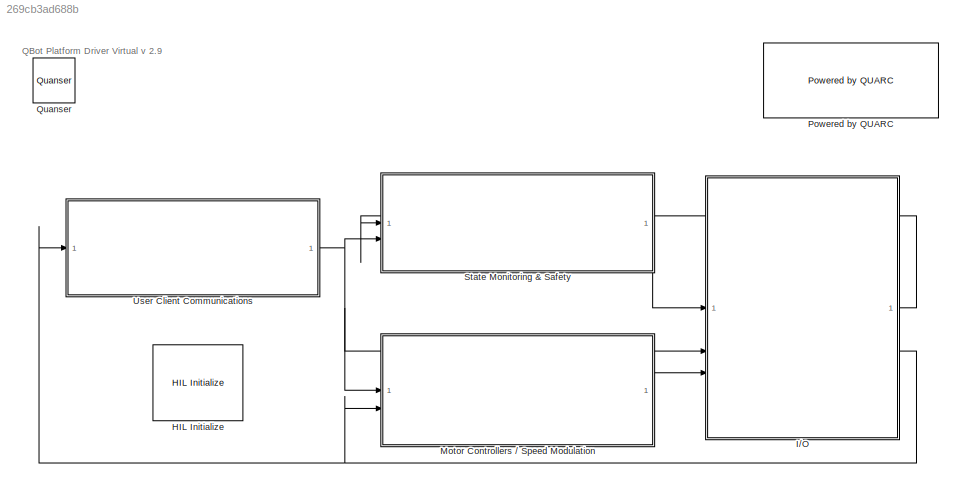
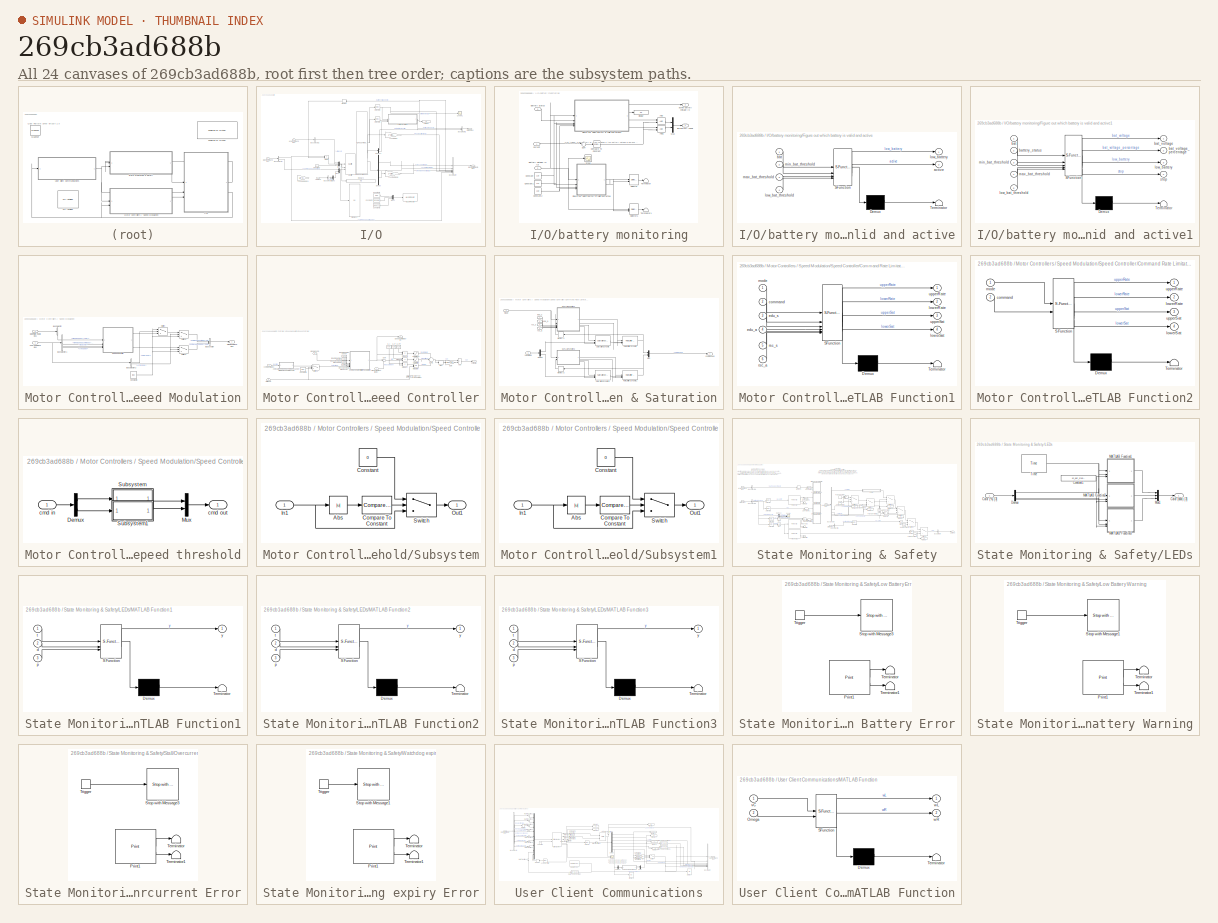
[diagram: thumbnail index - all 24 canvases of the model, root first then tree order]
MODEL slx_269cb3ad688b
KIND model
CONFIG AbsTol = auto
CONFIG EnableMultiTasking = on
CONFIG FixedStep = 1/30
CONFIG MaxStep = auto
CONFIG MinStep = auto
CONFIG RelTol = 1e-3
CONFIG SampleTimeConstraint = Unconstrained
CONFIG SolverName = FixedStepDiscrete
CONFIG StartTime = 0.0
CONFIG StopTime = inf
BLOCK [Reference] HIL Initialize  REF=quarc_library/Data Acquisition/Generic/Configuration/HIL Initialize
  AttributesFormatString = %<object_name> (%<board_type>-%<board_number>)
  SourceBlock = quarc_library/Data Acquisition/Generic/Configuration/HIL Initialize
  SourceProductName = QUARC Targets
  SourceType = HIL Initialize
  UserDataPersistent = on
BLOCK [SubSystem] I//O
BLOCK [BusCreator] I//O/Bus Creator
  DisplayOption = bar
  InheritFromInputs = on
  Inputs = 7
BLOCK [BusCreator] I//O/Bus Creator1
  DisplayOption = bar
  InheritFromInputs = on
  Inputs = 2
BLOCK [BusSelector] I//O/Bus Selector
  OutputSignals = Commanded Voltage (Volts) [2],Commanded Speed (rad/s) [2]
BLOCK [BusSelector] I//O/Bus Selector1
  OutputSignals = Arm (bool)
BLOCK [BusSelector] I//O/Bus Selector2
  OutputSignals = LEDs
BLOCK [Constant] I//O/Constant
  OutDataTypeStr = boolean
BLOCK [Constant] I//O/Constant1
  Commented = on
  Value = 0.01
BLOCK [Constant] I//O/Constant2
  Commented = on
  Value = 0.01386
BLOCK [Constant] I//O/Constant3
  Commented = on
  Value = 0.002772
BLOCK [Demux] I//O/Demux
  Outputs = [3 3 2]
BLOCK [Demux] I//O/Demux1
  Outputs = [8 2]
BLOCK [Display] I//O/Display1
  Decimation = 1
BLOCK [Display] I//O/Display2
  Decimation = 1
BLOCK [Product] I//O/Divide
  Inputs = */
BLOCK [Reference] I//O/HIL Read Timebase  REF=quarc_library/Data Acquisition/Generic/Timebases/HIL Read
Timebase
  AttributesFormatString = (%<object_name>)
  SourceBlock = quarc_library/Data Acquisition/Generic/Timebases/HIL Read\nTimebase
  SourceProductName = QUARC Targets
  SourceType = HIL Read Timebase
  UserDataPersistent = on
BLOCK [Reference] I//O/HIL Set Property  REF=quarc_library/Data Acquisition/Generic/Configuration/HIL Set Property
  AttributesFormatString = (%<object_name>)
  Commented = on
  SourceBlock = quarc_library/Data Acquisition/Generic/Configuration/HIL Set Property
  SourceProductName = QUARC Targets
  SourceType = HIL Set Property
  UserDataPersistent = on
BLOCK [Reference] I//O/HIL Write  REF=quarc_library/Data Acquisition/Generic/Immediate I//O/HIL Write
  AttributesFormatString = (%<object_name>)
  SourceBlock = quarc_library/Data Acquisition/Generic/Immediate I//O/HIL Write
  SourceProductName = QUARC Targets
  SourceType = HIL Write
  UserDataPersistent = on
BLOCK [Inport] I//O/LED Bus
BLOCK [Memory] I//O/Memory
  InitialCondition = 13.5
  NameLocation = top
BLOCK [Mux] I//O/Mux
  DisplayOption = bar
  Inputs = 3
BLOCK [Mux] I//O/Mux1
  DisplayOption = bar
  Inputs = 2
BLOCK [Mux] I//O/Mux2
  Commented = on
  DisplayOption = bar
  Inputs = 3
BLOCK [Mux] I//O/Mux3
  DisplayOption = bar
  Inputs = 2
BLOCK [Inport] I//O/QBot Command Bus
  NameLocation = top
  Port = 3
BLOCK [Outport] I//O/QBot Platform Data Bus
  Port = 2
BLOCK [Scope] I//O/Scope1
  Floating = off
  NumInputPorts = 1
  ScopeSpecificationString = Simulink.scopes.TimeScopeBlockCfg('CurrentConfiguration', extmgr.ConfigurationSet(extmgr.Configuration('Core','General UI',true),extmgr.Configuration('Core','Source UI',true),extmgr.Configuration('Sources','WiredSimulink',true,'DataLoggingVariableName','ScopeData2'),extmgr.Configuration('Visuals','Time Domain',true,'SerializedDisplays',{struct('MinYLimReal','-0.00065','MaxYLimReal','0.00583','YLab...<+1410ch>
BLOCK [Selector] I//O/Selector1
  IndexOptions = Index vector (dialog)
  Indices = 3:4
  InputPortWidth = 4
  OutputSizes = 1
BLOCK [Selector] I//O/Selector2
  IndexOptions = Index vector (dialog)
  Indices = 1:2
  InputPortWidth = 4
  OutputSizes = 1
BLOCK [Outport] I//O/Status Bus
BLOCK [Inport] I//O/User Command Bus
  Port = 2
BLOCK [Display] I//O/Voltage
  Decimation = 1
BLOCK [SubSystem] I//O/battery monitoring
BLOCK [Logic] I//O/battery monitoring/AND
  AllPortsSameDT = off
  IconShape = distinctive
  OutDataTypeStr = boolean
BLOCK [Logic] I//O/battery monitoring/AND1
  AllPortsSameDT = off
  IconShape = distinctive
  OutDataTypeStr = boolean
BLOCK [Inport] I//O/battery monitoring/Battery Status
  Port = 3
BLOCK [Inport] I//O/battery monitoring/Battery Voltage (V) [2]
  NameLocation = top
  Port = 2
BLOCK [Reference] I//O/battery monitoring/Compare To Constant  REF=simulink/Logic and Bit
Operations/Compare
To Constant
  SourceBlock = simulink/Logic and Bit\nOperations/Compare\nTo Constant
  SourceType = Compare To Constant
BLOCK [Constant] I//O/battery monitoring/Constant
  Value = 11.6
BLOCK [Constant] I//O/battery monitoring/Constant1
  Value = 14.4
BLOCK [Constant] I//O/battery monitoring/Constant2
  Value = 12.0
BLOCK [Inport] I//O/battery monitoring/Current
BLOCK [Display] I//O/battery monitoring/Display
  Decimation = 1
BLOCK [SubSystem] I//O/battery monitoring/Figure out which battery is valid and active
  ErrorFcn = Stateflow.Translate.translate
  LibrarySourceBlock = simulink/User-Defined\nFunctions/MATLAB Function
  PermitHierarchicalResolution = ExplicitOnly
  SFBlockType = MATLAB Function
  TreatAsAtomicUnit = on
BLOCK [Demux] I//O/battery monitoring/Figure out which battery is valid and active/ Demux 
  Outputs = 1
BLOCK [S-Function] I//O/battery monitoring/Figure out which battery is valid and active/ SFunction 
  EnableBusSupport = on
  FunctionName = sf_sfun
  PortCounts = [4 3]
  SFcnIsStateOwnerBlock = off
  SFunctionDeploymentMode = off
  Tag = Stateflow S-Function 9
BLOCK [Terminator] I//O/battery monitoring/Figure out which battery is valid and active/ Terminator 
BLOCK [Outport] I//O/battery monitoring/Figure out which battery is valid and active/active
  Port = 2
BLOCK [Inport] I//O/battery monitoring/Figure out which battery is valid and active/bat
BLOCK [Inport] I//O/battery monitoring/Figure out which battery is valid and active/low_bat_threshold
  Port = 4
BLOCK [Outport] I//O/battery monitoring/Figure out which battery is valid and active/low_battery
BLOCK [Inport] I//O/battery monitoring/Figure out which battery is valid and active/max_bat_threshold
  Port = 3
BLOCK [Inport] I//O/battery monitoring/Figure out which battery is valid and active/min_bat_threshold
  Port = 2
BLOCK [SubSystem] I//O/battery monitoring/Figure out which battery is valid and active1
  ErrorFcn = Stateflow.Translate.translate
  LibrarySourceBlock = simulink/User-Defined\nFunctions/MATLAB Function
  PermitHierarchicalResolution = ExplicitOnly
  SFBlockType = MATLAB Function
  TreatAsAtomicUnit = on
BLOCK [Demux] I//O/battery monitoring/Figure out which battery is valid and active1/ Demux 
  Outputs = 1
BLOCK [S-Function] I//O/battery monitoring/Figure out which battery is valid and active1/ SFunction 
  EnableBusSupport = on
  FunctionName = sf_sfun
  PortCounts = [5 5]
  SFcnIsStateOwnerBlock = off
  SFunctionDeploymentMode = off
  Tag = Stateflow S-Function 5
BLOCK [Terminator] I//O/battery monitoring/Figure out which battery is valid and active1/ Terminator 
BLOCK [Inport] I//O/battery monitoring/Figure out which battery is valid and active1/bat
BLOCK [Outport] I//O/battery monitoring/Figure out which battery is valid and active1/bat_voltage
BLOCK [Outport] I//O/battery monitoring/Figure out which battery is valid and active1/bat_voltage_percentage
  Port = 2
BLOCK [Inport] I//O/battery monitoring/Figure out which battery is valid and active1/battery_status
  Port = 2
BLOCK [Inport] I//O/battery monitoring/Figure out which battery is valid and active1/low_bat_threshold
  Port = 5
BLOCK [Outport] I//O/battery monitoring/Figure out which battery is valid and active1/low_battery
  Port = 3
BLOCK [Inport] I//O/battery monitoring/Figure out which battery is valid and active1/max_bat_threshold
  Port = 4
BLOCK [Inport] I//O/battery monitoring/Figure out which battery is valid and active1/min_bat_threshold
  Port = 3
BLOCK [Outport] I//O/battery monitoring/Figure out which battery is valid and active1/stop
  Port = 4
BLOCK [Mux] I//O/battery monitoring/Mux
  DisplayOption = bar
  Inputs = 2
BLOCK [Scope] I//O/battery monitoring/Scope
  Floating = off
  NumInputPorts = 1
  ScopeSpecificationString = Simulink.scopes.TimeScopeBlockCfg('CurrentConfiguration', extmgr.ConfigurationSet(extmgr.Configuration('Core','General UI',true),extmgr.Configuration('Core','Source UI',true),extmgr.Configuration('Sources','WiredSimulink',true,'DataLoggingVariableName','ScopeData1'),extmgr.Configuration('Visuals','Time Domain',true,'SerializedDisplays',{struct('MinYLimReal','0.75149','MaxYLimReal','14.52656','YLab...<+1489ch>
BLOCK [Selector] I//O/battery monitoring/Selector
  IndexOptions = Index vector (port)
  Indices = [1 3]
  InputPortWidth = 2
  OutputSizes = 1
BLOCK [Selector] I//O/battery monitoring/Selector1
  IndexOptions = Index vector (port)
  Indices = [1 3]
  InputPortWidth = 2
  OutputSizes = 1
BLOCK [Sum] I//O/battery monitoring/Sum
  Inputs = 1
BLOCK [Terminator] I//O/battery monitoring/Terminator
BLOCK [Terminator] I//O/battery monitoring/Terminator1
BLOCK [Outport] I//O/battery monitoring/active battery voltage (V)
  Port = 2
BLOCK [Outport] I//O/battery monitoring/low battery (bool)
BLOCK [Gain] I//O/count   s//s to rad//s
  Gain = 2*pi/85/4
BLOCK [Gain] I//O/count   s//s to rad//s1
  Commented = on
  Gain = 1/(2*pi/85/4)
BLOCK [Gain] I//O/counts to rad
  Gain = 2*pi/85/4
BLOCK [SubSystem] Motor Controllers // Speed Modulation
BLOCK [BusCreator] Motor Controllers // Speed Modulation/Bus Creator
  DisplayOption = bar
  InheritFromInputs = on
  Inputs = 2
BLOCK [BusSelector] Motor Controllers // Speed Modulation/Bus Selector
  OutputSignals = Wheel speeds (rad/s) [2]
BLOCK [BusSelector] Motor Controllers // Speed Modulation/Bus Selector1
  OutputSignals = Wheel speed command (rad/s) [2],Mode (int),Arm (bool)
BLOCK [BusSelector] Motor Controllers // Speed Modulation/Bus Selector2
  OutputSignals = Hold (bool),Arm (bool)
BLOCK [Constant] Motor Controllers // Speed Modulation/Constant3
  Value = [0; 0]
  VectorParams1D = off
BLOCK [Outport] Motor Controllers // Speed Modulation/QBot Command Bus
BLOCK [Inport] Motor Controllers // Speed Modulation/QBot Platform Data Bus
  Port = 2
BLOCK [SubSystem] Motor Controllers // Speed Modulation/Speed Controller
  NameLocation = top
BLOCK [Sum] Motor Controllers // Speed Modulation/Speed Controller/Add
  IconShape = rectangular
BLOCK [Inport] Motor Controllers // Speed Modulation/Speed Controller/Arm (bool)
  Port = 4
BLOCK [SubSystem] Motor Controllers // Speed Modulation/Speed Controller/Command Rate Limitation & Saturation
BLOCK [Demux] Motor Controllers // Speed Modulation/Speed Controller/Command Rate Limitation & Saturation/Demux
  Outputs = 2
BLOCK [SubSystem] Motor Controllers // Speed Modulation/Speed Controller/Command Rate Limitation & Saturation/MATLAB Function1
  ErrorFcn = Stateflow.Translate.translate
  LibrarySourceBlock = simulink/User-Defined\nFunctions/MATLAB Function
  PermitHierarchicalResolution = ExplicitOnly
  SFBlockType = MATLAB Function
  TreatAsAtomicUnit = on
BLOCK [Demux] Motor Controllers // Speed Modulation/Speed Controller/Command Rate Limitation & Saturation/MATLAB Function1/ Demux 
  Outputs = 1
BLOCK [S-Function] Motor Controllers // Speed Modulation/Speed Controller/Command Rate Limitation & Saturation/MATLAB Function1/ SFunction 
  EnableBusSupport = on
  FunctionName = sf_sfun
  PortCounts = [6 5]
  SFcnIsStateOwnerBlock = off
  SFunctionDeploymentMode = off
  Tag = Stateflow S-Function 2
BLOCK [Terminator] Motor Controllers // Speed Modulation/Speed Controller/Command Rate Limitation & Saturation/MATLAB Function1/ Terminator 
BLOCK [Inport] Motor Controllers // Speed Modulation/Speed Controller/Command Rate Limitation & Saturation/MATLAB Function1/command
  Port = 2
BLOCK [Inport] Motor Controllers // Speed Modulation/Speed Controller/Command Rate Limitation & Saturation/MATLAB Function1/edu_a
  Port = 4
BLOCK [Inport] Motor Controllers // Speed Modulation/Speed Controller/Command Rate Limitation & Saturation/MATLAB Function1/edu_s
  Port = 3
BLOCK [Outport] Motor Controllers // Speed Modulation/Speed Controller/Command Rate Limitation & Saturation/MATLAB Function1/lowerRate
  Port = 2
BLOCK [Outport] Motor Controllers // Speed Modulation/Speed Controller/Command Rate Limitation & Saturation/MATLAB Function1/lowerSat
  Port = 4
BLOCK [Inport] Motor Controllers // Speed Modulation/Speed Controller/Command Rate Limitation & Saturation/MATLAB Function1/mode
BLOCK [Inport] Motor Controllers // Speed Modulation/Speed Controller/Command Rate Limitation & Saturation/MATLAB Function1/rsc_a
  Port = 6
BLOCK [Inport] Motor Controllers // Speed Modulation/Speed Controller/Command Rate Limitation & Saturation/MATLAB Function1/rsc_s
  Port = 5
BLOCK [Outport] Motor Controllers // Speed Modulation/Speed Controller/Command Rate Limitation & Saturation/MATLAB Function1/upperRate
BLOCK [Outport] Motor Controllers // Speed Modulation/Speed Controller/Command Rate Limitation & Saturation/MATLAB Function1/upperSat
  Port = 3
BLOCK [SubSystem] Motor Controllers // Speed Modulation/Speed Controller/Command Rate Limitation & Saturation/MATLAB Function2
  ErrorFcn = Stateflow.Translate.translate
  LibrarySourceBlock = simulink/User-Defined\nFunctions/MATLAB Function
  PermitHierarchicalResolution = ExplicitOnly
  SFBlockType = MATLAB Function
  TreatAsAtomicUnit = on
BLOCK [Demux] Motor Controllers // Speed Modulation/Speed Controller/Command Rate Limitation & Saturation/MATLAB Function2/ Demux 
  Outputs = 1
BLOCK [S-Function] Motor Controllers // Speed Modulation/Speed Controller/Command Rate Limitation & Saturation/MATLAB Function2/ SFunction 
  EnableBusSupport = on
  FunctionName = sf_sfun
  PortCounts = [2 5]
  SFcnIsStateOwnerBlock = off
  SFunctionDeploymentMode = off
  Tag = Stateflow S-Function 8
BLOCK [Terminator] Motor Controllers // Speed Modulation/Speed Controller/Command Rate Limitation & Saturation/MATLAB Function2/ Terminator 
BLOCK [Inport] Motor Controllers // Speed Modulation/Speed Controller/Command Rate Limitation & Saturation/MATLAB Function2/command
  Port = 2
BLOCK [Outport] Motor Controllers // Speed Modulation/Speed Controller/Command Rate Limitation & Saturation/MATLAB Function2/lowerRate
  Port = 2
BLOCK [Outport] Motor Controllers // Speed Modulation/Speed Controller/Command Rate Limitation & Saturation/MATLAB Function2/lowerSat
  Port = 4
BLOCK [Inport] Motor Controllers // Speed Modulation/Speed Controller/Command Rate Limitation & Saturation/MATLAB Function2/mode
BLOCK [Outport] Motor Controllers // Speed Modulation/Speed Controller/Command Rate Limitation & Saturation/MATLAB Function2/upperRate
BLOCK [Outport] Motor Controllers // Speed Modulation/Speed Controller/Command Rate Limitation & Saturation/MATLAB Function2/upperSat
  Port = 3
BLOCK [Memory] Motor Controllers // Speed Modulation/Speed Controller/Command Rate Limitation & Saturation/Memory1
  NameLocation = top
BLOCK [Memory] Motor Controllers // Speed Modulation/Speed Controller/Command Rate Limitation & Saturation/Memory2
  NameLocation = top
BLOCK [Mux] Motor Controllers // Speed Modulation/Speed Controller/Command Rate Limitation & Saturation/Mux
  DisplayOption = bar
  Inputs = 2
BLOCK [Reference] Motor Controllers // Speed Modulation/Speed Controller/Command Rate Limitation & Saturation/Rate Limiter Dynamic  REF=simulink/Discontinuities/Rate Limiter
Dynamic
  SourceBlock = simulink/Discontinuities/Rate Limiter\nDynamic
  SourceType = Rate Limiter Dynamic
BLOCK [Reference] Motor Controllers // Speed Modulation/Speed Controller/Command Rate Limitation & Saturation/Rate Limiter Dynamic1  REF=simulink/Discontinuities/Rate Limiter
Dynamic
  SourceBlock = simulink/Discontinuities/Rate Limiter\nDynamic
  SourceType = Rate Limiter Dynamic
BLOCK [Reference] Motor Controllers // Speed Modulation/Speed Controller/Command Rate Limitation & Saturation/Saturation Dynamic  REF=simulink/Discontinuities/Saturation
Dynamic
  SourceBlock = simulink/Discontinuities/Saturation\nDynamic
  SourceType = Saturation Dynamic
BLOCK [Reference] Motor Controllers // Speed Modulation/Speed Controller/Command Rate Limitation & Saturation/Saturation Dynamic1  REF=simulink/Discontinuities/Saturation
Dynamic
  SourceBlock = simulink/Discontinuities/Saturation\nDynamic
  SourceType = Saturation Dynamic
BLOCK [Outport] Motor Controllers // Speed Modulation/Speed Controller/Command Rate Limitation & Saturation/commanded
BLOCK [Inport] Motor Controllers // Speed Modulation/Speed Controller/Command Rate Limitation & Saturation/edu_a
  Port = 3
BLOCK [Inport] Motor Controllers // Speed Modulation/Speed Controller/Command Rate Limitation & Saturation/edu_s
  Port = 2
BLOCK [Inport] Motor Controllers // Speed Modulation/Speed Controller/Command Rate Limitation & Saturation/mode
BLOCK [Inport] Motor Controllers // Speed Modulation/Speed Controller/Command Rate Limitation & Saturation/net voltage
  Port = 6
BLOCK [Inport] Motor Controllers // Speed Modulation/Speed Controller/Command Rate Limitation & Saturation/rsc_a
  Port = 5
BLOCK [Inport] Motor Controllers // Speed Modulation/Speed Controller/Command Rate Limitation & Saturation/rsc_s
  Port = 4
BLOCK [Constant] Motor Controllers // Speed Modulation/Speed Controller/Constant6
  Value = [0 0]
BLOCK [DataTypeConversion] Motor Controllers // Speed Modulation/Speed Controller/Data Type Conversion
  NameLocation = left
  RndMeth = Floor
  SaturateOnIntegerOverflow = off
BLOCK [Constant] Motor Controllers // Speed Modulation/Speed Controller/Edu mode max accel
  NameLocation = left
  Value = 11.25
BLOCK [Constant] Motor Controllers // Speed Modulation/Speed Controller/Edu mode max speed
  NameLocation = left
  Value = 15.75
BLOCK [Gain] Motor Controllers // Speed Modulation/Speed Controller/Gain
  Gain = 0.02*13
BLOCK [Integrator] Motor Controllers // Speed Modulation/Speed Controller/Integrator
  ExternalReset = either
  InitialCondition = [0 0]
  LimitOutput = on
  LowerSaturationLimit = [-2 -2]
  UpperSaturationLimit = [2 2]
BLOCK [Constant] Motor Controllers // Speed Modulation/Speed Controller/K_FF
  NameLocation = top
  Value = 0.15
BLOCK [Constant] Motor Controllers // Speed Modulation/Speed Controller/K_I
  NameLocation = top
  Value = 0.75
BLOCK [Constant] Motor Controllers // Speed Modulation/Speed Controller/K_P
  NameLocation = top
  Value = 0.25
BLOCK [Inport] Motor Controllers // Speed Modulation/Speed Controller/Mode (enum)
  Port = 3
BLOCK [Product] Motor Controllers // Speed Modulation/Speed Controller/Product
BLOCK [Product] Motor Controllers // Speed Modulation/Speed Controller/Product1
BLOCK [Product] Motor Controllers // Speed Modulation/Speed Controller/Product2
BLOCK [Constant] Motor Controllers // Speed Modulation/Speed Controller/Research mode max accel
  NameLocation = left
  Value = 22.50
BLOCK [Constant] Motor Controllers // Speed Modulation/Speed Controller/Research mode max speed
  NameLocation = left
  Value = 33.75
BLOCK [Saturate] Motor Controllers // Speed Modulation/Speed Controller/Saturation
  LowerLimit = [-5 -5]
  UpperLimit = [5 5]
BLOCK [Saturate] Motor Controllers // Speed Modulation/Speed Controller/Saturation2
  LowerLimit = [-5 -5]
  UpperLimit = [5 5]
BLOCK [Signum] Motor Controllers // Speed Modulation/Speed Controller/Sign
BLOCK [Outport] Motor Controllers // Speed Modulation/Speed Controller/Speed Cmd (rad//s) [2]
  Port = 2
BLOCK [Sum] Motor Controllers // Speed Modulation/Speed Controller/Sum
  Inputs = |+-
BLOCK [Sum] Motor Controllers // Speed Modulation/Speed Controller/Sum1
  Inputs = +|++
BLOCK [Switch] Motor Controllers // Speed Modulation/Speed Controller/Switch3
  Criteria = u2 > Threshold
  InputSameDT = off
  SaturateOnIntegerOverflow = off
BLOCK [Outport] Motor Controllers // Speed Modulation/Speed Controller/Volts (V) [2]
BLOCK [Inport] Motor Controllers // Speed Modulation/Speed Controller/command (rad//s)
  Port = 2
BLOCK [Inport] Motor Controllers // Speed Modulation/Speed Controller/measurement (rad//s)
BLOCK [SubSystem] Motor Controllers // Speed Modulation/Speed Controller/zero out wheel speed commands under minimum speed threshold
BLOCK [Demux] Motor Controllers // Speed Modulation/Speed Controller/zero out wheel speed commands under minimum speed threshold/Demux
  Outputs = 2
BLOCK [Mux] Motor Controllers // Speed Modulation/Speed Controller/zero out wheel speed commands under minimum speed threshold/Mux
  DisplayOption = bar
  Inputs = 2
BLOCK [SubSystem] Motor Controllers // Speed Modulation/Speed Controller/zero out wheel speed commands under minimum speed threshold/Subsystem
  NameLocation = top
BLOCK [Abs] Motor Controllers // Speed Modulation/Speed Controller/zero out wheel speed commands under minimum speed threshold/Subsystem/Abs
  SaturateOnIntegerOverflow = off
BLOCK [Reference] Motor Controllers // Speed Modulation/Speed Controller/zero out wheel speed commands under minimum speed threshold/Subsystem/Compare To Constant  REF=simulink/Logic and Bit
Operations/Compare
To Constant
  SourceBlock = simulink/Logic and Bit\nOperations/Compare\nTo Constant
  SourceType = Compare To Constant
BLOCK [Constant] Motor Controllers // Speed Modulation/Speed Controller/zero out wheel speed commands under minimum speed threshold/Subsystem/Constant
  Value = 0
BLOCK [Inport] Motor Controllers // Speed Modulation/Speed Controller/zero out wheel speed commands under minimum speed threshold/Subsystem/In1
BLOCK [Outport] Motor Controllers // Speed Modulation/Speed Controller/zero out wheel speed commands under minimum speed threshold/Subsystem/Out1
BLOCK [Switch] Motor Controllers // Speed Modulation/Speed Controller/zero out wheel speed commands under minimum speed threshold/Subsystem/Switch
  Criteria = u2 > Threshold
  InputSameDT = off
  SaturateOnIntegerOverflow = off
BLOCK [SubSystem] Motor Controllers // Speed Modulation/Speed Controller/zero out wheel speed commands under minimum speed threshold/Subsystem1
BLOCK [Abs] Motor Controllers // Speed Modulation/Speed Controller/zero out wheel speed commands under minimum speed threshold/Subsystem1/Abs
  SaturateOnIntegerOverflow = off
BLOCK [Reference] Motor Controllers // Speed Modulation/Speed Controller/zero out wheel speed commands under minimum speed threshold/Subsystem1/Compare To Constant  REF=simulink/Logic and Bit
Operations/Compare
To Constant
  SourceBlock = simulink/Logic and Bit\nOperations/Compare\nTo Constant
  SourceType = Compare To Constant
BLOCK [Constant] Motor Controllers // Speed Modulation/Speed Controller/zero out wheel speed commands under minimum speed threshold/Subsystem1/Constant
  Value = 0
BLOCK [Inport] Motor Controllers // Speed Modulation/Speed Controller/zero out wheel speed commands under minimum speed threshold/Subsystem1/In1
BLOCK [Outport] Motor Controllers // Speed Modulation/Speed Controller/zero out wheel speed commands under minimum speed threshold/Subsystem1/Out1
BLOCK [Switch] Motor Controllers // Speed Modulation/Speed Controller/zero out wheel speed commands under minimum speed threshold/Subsystem1/Switch
  Criteria = u2 > Threshold
  InputSameDT = off
  SaturateOnIntegerOverflow = off
BLOCK [Inport] Motor Controllers // Speed Modulation/Speed Controller/zero out wheel speed commands under minimum speed threshold/cmd in
BLOCK [Outport] Motor Controllers // Speed Modulation/Speed Controller/zero out wheel speed commands under minimum speed threshold/cmd out
BLOCK [Switch] Motor Controllers // Speed Modulation/Switch
  Criteria = u2 > Threshold
  InputSameDT = off
  SaturateOnIntegerOverflow = off
BLOCK [Switch] Motor Controllers // Speed Modulation/Switch1
  Criteria = u2 > Threshold
  InputSameDT = off
  SaturateOnIntegerOverflow = off
BLOCK [Switch] Motor Controllers // Speed Modulation/Switch2
  Criteria = u2 > Threshold
  InputSameDT = off
  SaturateOnIntegerOverflow = off
BLOCK [Inport] Motor Controllers // Speed Modulation/User Command Bus
BLOCK [Reference] Powered by QUARC  REF=quarc_library/Logos/Powered by QUARC
  SourceBlock = quarc_library/Logos/Powered by QUARC
  SourceProductName = QUARC Targets
  SourceType = Powered by QUARC
BLOCK [Reference] Quanser  REF=quarc_library/Logos/Quanser
  SourceBlock = quarc_library/Logos/Quanser
  SourceProductName = QUARC Targets
  SourceType = Powered by Quanser
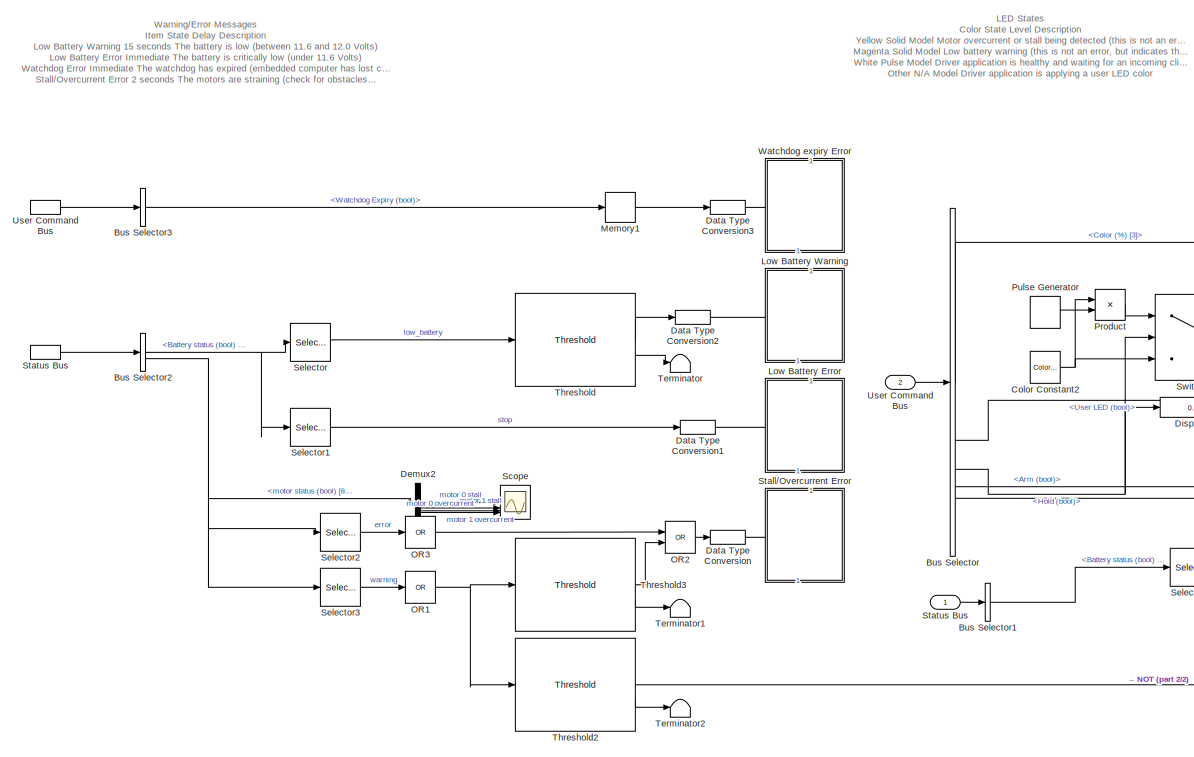
[diagram: State Monitoring & Safety - part 1/2, left side, full height]
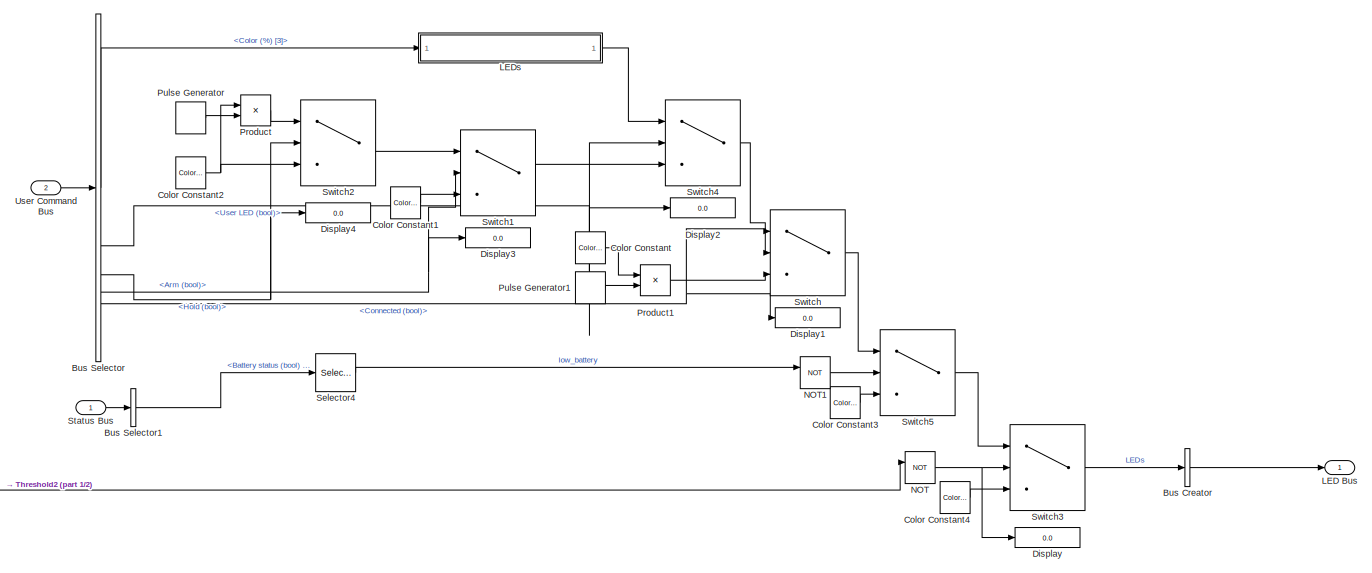
[diagram: State Monitoring & Safety - part 2/2, middle right region]
BLOCK [SubSystem] State Monitoring & Safety
BLOCK [BusCreator] State Monitoring & Safety/Bus Creator
  DisplayOption = bar
  InheritFromInputs = on
  Inputs = 1
BLOCK [BusSelector] State Monitoring & Safety/Bus Selector
  OutputSignals = Color (%) [3],User LED (bool),Hold (bool),Arm (bool),Connected (bool)
BLOCK [BusSelector] State Monitoring & Safety/Bus Selector1
  OutputSignals = Battery status (bool) [2]
BLOCK [BusSelector] State Monitoring & Safety/Bus Selector2
  OutputSignals = Battery status (bool) [2],motor status (bool) [8]
BLOCK [BusSelector] State Monitoring & Safety/Bus Selector3
  OutputSignals = Watchdog Expiry (bool)
BLOCK [Reference] State Monitoring & Safety/Color Constant  REF=quarc_library/Sources/Signals/Color Constant
  SourceBlock = quarc_library/Sources/Signals/Color Constant
  SourceProductName = QUARC Targets
  SourceType = Color Constant
BLOCK [Reference] State Monitoring & Safety/Color Constant1  REF=quarc_library/Sources/Signals/Color Constant
  SourceBlock = quarc_library/Sources/Signals/Color Constant
  SourceProductName = QUARC Targets
  SourceType = Color Constant
BLOCK [Reference] State Monitoring & Safety/Color Constant2  REF=quarc_library/Sources/Signals/Color Constant
  SourceBlock = quarc_library/Sources/Signals/Color Constant
  SourceProductName = QUARC Targets
  SourceType = Color Constant
BLOCK [Reference] State Monitoring & Safety/Color Constant3  REF=quarc_library/Sources/Signals/Color Constant
  SourceBlock = quarc_library/Sources/Signals/Color Constant
  SourceProductName = QUARC Targets
  SourceType = Color Constant
BLOCK [Reference] State Monitoring & Safety/Color Constant4  REF=quarc_library/Sources/Signals/Color Constant
  SourceBlock = quarc_library/Sources/Signals/Color Constant
  SourceProductName = QUARC Targets
  SourceType = Color Constant
BLOCK [DataTypeConversion] State Monitoring & Safety/Data Type Conversion
  RndMeth = Floor
  SaturateOnIntegerOverflow = off
BLOCK [DataTypeConversion] State Monitoring & Safety/Data Type Conversion1
  RndMeth = Floor
  SaturateOnIntegerOverflow = off
BLOCK [DataTypeConversion] State Monitoring & Safety/Data Type Conversion2
  RndMeth = Floor
  SaturateOnIntegerOverflow = off
BLOCK [DataTypeConversion] State Monitoring & Safety/Data Type Conversion3
  RndMeth = Floor
  SaturateOnIntegerOverflow = off
BLOCK [Demux] State Monitoring & Safety/Demux2
  Outputs = [2 2 2 2]
BLOCK [Display] State Monitoring & Safety/Display
  Decimation = 1
BLOCK [Display] State Monitoring & Safety/Display1
  Decimation = 1
BLOCK [Display] State Monitoring & Safety/Display2
  Decimation = 1
BLOCK [Display] State Monitoring & Safety/Display3
  Decimation = 1
BLOCK [Display] State Monitoring & Safety/Display4
  Decimation = 1
BLOCK [Outport] State Monitoring & Safety/LED Bus
BLOCK [SubSystem] State Monitoring & Safety/LEDs
  NameLocation = top
BLOCK [Inport] State Monitoring & Safety/LEDs/Color (%) [3]
BLOCK [Outport] State Monitoring & Safety/LEDs/Color (bool) [3]
BLOCK [Constant] State Monitoring & Safety/LEDs/Constant1
  Value = qc_get_step_size*5
BLOCK [Demux] State Monitoring & Safety/LEDs/Demux
  Outputs = 3
BLOCK [SubSystem] State Monitoring & Safety/LEDs/MATLAB Function1
  ErrorFcn = Stateflow.Translate.translate
  LibrarySourceBlock = simulink/User-Defined\nFunctions/MATLAB Function
  PermitHierarchicalResolution = ExplicitOnly
  SFBlockType = MATLAB Function
  TreatAsAtomicUnit = on
BLOCK [Demux] State Monitoring & Safety/LEDs/MATLAB Function1/ Demux 
  Outputs = 1
BLOCK [S-Function] State Monitoring & Safety/LEDs/MATLAB Function1/ SFunction 
  EnableBusSupport = on
  FunctionName = sf_sfun
  PortCounts = [3 2]
  SFcnIsStateOwnerBlock = off
  SFunctionDeploymentMode = off
  Tag = Stateflow S-Function 1
BLOCK [Terminator] State Monitoring & Safety/LEDs/MATLAB Function1/ Terminator 
BLOCK [Inport] State Monitoring & Safety/LEDs/MATLAB Function1/d
  Port = 2
BLOCK [Inport] State Monitoring & Safety/LEDs/MATLAB Function1/p
  Port = 3
BLOCK [Inport] State Monitoring & Safety/LEDs/MATLAB Function1/t
BLOCK [Outport] State Monitoring & Safety/LEDs/MATLAB Function1/y
BLOCK [SubSystem] State Monitoring & Safety/LEDs/MATLAB Function2
  ErrorFcn = Stateflow.Translate.translate
  LibrarySourceBlock = simulink/User-Defined\nFunctions/MATLAB Function
  PermitHierarchicalResolution = ExplicitOnly
  SFBlockType = MATLAB Function
  TreatAsAtomicUnit = on
BLOCK [Demux] State Monitoring & Safety/LEDs/MATLAB Function2/ Demux 
  Outputs = 1
BLOCK [S-Function] State Monitoring & Safety/LEDs/MATLAB Function2/ SFunction 
  EnableBusSupport = on
  FunctionName = sf_sfun
  PortCounts = [3 2]
  SFcnIsStateOwnerBlock = off
  SFunctionDeploymentMode = off
  Tag = Stateflow S-Function 4
BLOCK [Terminator] State Monitoring & Safety/LEDs/MATLAB Function2/ Terminator 
BLOCK [Inport] State Monitoring & Safety/LEDs/MATLAB Function2/d
  Port = 2
BLOCK [Inport] State Monitoring & Safety/LEDs/MATLAB Function2/p
  Port = 3
BLOCK [Inport] State Monitoring & Safety/LEDs/MATLAB Function2/t
BLOCK [Outport] State Monitoring & Safety/LEDs/MATLAB Function2/y
BLOCK [SubSystem] State Monitoring & Safety/LEDs/MATLAB Function3
  ErrorFcn = Stateflow.Translate.translate
  LibrarySourceBlock = simulink/User-Defined\nFunctions/MATLAB Function
  PermitHierarchicalResolution = ExplicitOnly
  SFBlockType = MATLAB Function
  TreatAsAtomicUnit = on
BLOCK [Demux] State Monitoring & Safety/LEDs/MATLAB Function3/ Demux 
  Outputs = 1
BLOCK [S-Function] State Monitoring & Safety/LEDs/MATLAB Function3/ SFunction 
  EnableBusSupport = on
  FunctionName = sf_sfun
  PortCounts = [3 2]
  SFcnIsStateOwnerBlock = off
  SFunctionDeploymentMode = off
  Tag = Stateflow S-Function 6
BLOCK [Terminator] State Monitoring & Safety/LEDs/MATLAB Function3/ Terminator 
BLOCK [Inport] State Monitoring & Safety/LEDs/MATLAB Function3/d
  Port = 2
BLOCK [Inport] State Monitoring & Safety/LEDs/MATLAB Function3/p
  Port = 3
BLOCK [Inport] State Monitoring & Safety/LEDs/MATLAB Function3/t
BLOCK [Outport] State Monitoring & Safety/LEDs/MATLAB Function3/y
BLOCK [Mux] State Monitoring & Safety/LEDs/Mux1
  DisplayOption = bar
  Inputs = 3
BLOCK [Reference] State Monitoring & Safety/LEDs/Time  REF=quarc_library/Sources/Time/Time
  SourceBlock = quarc_library/Sources/Time/Time
  SourceProductName = QUARC Targets
  SourceType = Time
BLOCK [SubSystem] State Monitoring & Safety/Low Battery Error
BLOCK [Reference] State Monitoring & Safety/Low Battery Error/Print1  REF=quarc_library/User Interface/Standard I//O/Print
  SourceBlock = quarc_library/User Interface/Standard I//O/Print
  SourceProductName = QUARC Targets
  SourceType = Print
BLOCK [Reference] State Monitoring & Safety/Low Battery Error/Stop with Message3  REF=quarc_library/Sinks/Error Handling/Stop with Message
  AttributesFormatString = "%<message>"
  SourceBlock = quarc_library/Sinks/Error Handling/Stop with Message
  SourceProductName = QUARC Targets
  SourceType = Stop with Message
BLOCK [Terminator] State Monitoring & Safety/Low Battery Error/Terminator
BLOCK [Terminator] State Monitoring & Safety/Low Battery Error/Terminator1
BLOCK [TriggerPort] State Monitoring & Safety/Low Battery Error/Trigger
  OutputDataType = double
  PortDimensions = 1
  ShowOutputPort = on
  StatesWhenEnabling = held
  VariantControl = (inherit)
BLOCK [SubSystem] State Monitoring & Safety/Low Battery Warning
BLOCK [Reference] State Monitoring & Safety/Low Battery Warning/Print1  REF=quarc_library/User Interface/Standard I//O/Print
  SourceBlock = quarc_library/User Interface/Standard I//O/Print
  SourceProductName = QUARC Targets
  SourceType = Print
BLOCK [Reference] State Monitoring & Safety/Low Battery Warning/Stop with Message1  REF=quarc_library/Sinks/Error Handling/Stop with Message
  AttributesFormatString = "%<message>"
  SourceBlock = quarc_library/Sinks/Error Handling/Stop with Message
  SourceProductName = QUARC Targets
  SourceType = Stop with Message
BLOCK [Terminator] State Monitoring & Safety/Low Battery Warning/Terminator
BLOCK [Terminator] State Monitoring & Safety/Low Battery Warning/Terminator1
BLOCK [TriggerPort] State Monitoring & Safety/Low Battery Warning/Trigger
  OutputDataType = double
  PortDimensions = 1
  ShowOutputPort = on
  StatesWhenEnabling = held
  VariantControl = (inherit)
BLOCK [Memory] State Monitoring & Safety/Memory1
BLOCK [Logic] State Monitoring & Safety/NOT
  AllPortsSameDT = off
  IconShape = distinctive
  Operator = NOT
  OutDataTypeStr = boolean
BLOCK [Logic] State Monitoring & Safety/NOT1
  AllPortsSameDT = off
  IconShape = distinctive
  Operator = NOT
  OutDataTypeStr = boolean
BLOCK [Logic] State Monitoring & Safety/OR1
  AllPortsSameDT = off
  IconShape = distinctive
  Inputs = 1
  Operator = OR
  OutDataTypeStr = boolean
BLOCK [Logic] State Monitoring & Safety/OR2
  AllPortsSameDT = off
  IconShape = distinctive
  Operator = OR
  OutDataTypeStr = boolean
BLOCK [Logic] State Monitoring & Safety/OR3
  AllPortsSameDT = off
  IconShape = distinctive
  Inputs = 1
  Operator = OR
  OutDataTypeStr = boolean
BLOCK [Product] State Monitoring & Safety/Product
BLOCK [Product] State Monitoring & Safety/Product1
BLOCK [DiscretePulseGenerator] State Monitoring & Safety/Pulse Generator
  Period = 1
  PulseType = Time based
  PulseWidth = 70
BLOCK [DiscretePulseGenerator] State Monitoring & Safety/Pulse Generator1
  Period = 1
  PulseType = Time based
  PulseWidth = 30
BLOCK [Scope] State Monitoring & Safety/Scope
  Floating = off
  NumInputPorts = 4
  ScopeSpecificationString = Simulink.scopes.TimeScopeBlockCfg('CurrentConfiguration', extmgr.ConfigurationSet(extmgr.Configuration('Core','General UI',true),extmgr.Configuration('Core','Source UI',true),extmgr.Configuration('Sources','WiredSimulink',true,'DataLoggingVariableName','ScopeData1'),extmgr.Configuration('Visuals','Time Domain',true,'SerializedDisplays',{struct('MinYLimReal','-0.125','MaxYLimReal','1.125','YLabelRe...<+3882ch>
BLOCK [Selector] State Monitoring & Safety/Selector
  IndexOptions = Index vector (dialog)
  Indices = 1
  InputPortWidth = 2
  OutputSizes = 1
BLOCK [Selector] State Monitoring & Safety/Selector1
  IndexOptions = Index vector (dialog)
  Indices = 2
  InputPortWidth = 2
  OutputSizes = 1
BLOCK [Selector] State Monitoring & Safety/Selector2
  IndexOptions = Index vector (dialog)
  Indices = [2 4 6 8]
  InputPortWidth = 8
  OutputSizes = 1
BLOCK [Selector] State Monitoring & Safety/Selector3
  IndexOptions = Index vector (dialog)
  Indices = [1 3 5 7]
  InputPortWidth = 8
  OutputSizes = 1
BLOCK [Selector] State Monitoring & Safety/Selector4
  IndexOptions = Index vector (dialog)
  Indices = 1
  InputPortWidth = 2
  OutputSizes = 1
BLOCK [SubSystem] State Monitoring & Safety/Stall//Overcurrent Error
BLOCK [Reference] State Monitoring & Safety/Stall//Overcurrent Error/Print1  REF=quarc_library/User Interface/Standard I//O/Print
  SourceBlock = quarc_library/User Interface/Standard I//O/Print
  SourceProductName = QUARC Targets
  SourceType = Print
BLOCK [Reference] State Monitoring & Safety/Stall//Overcurrent Error/Stop with Message3  REF=quarc_library/Sinks/Error Handling/Stop with Message
  AttributesFormatString = "%<message>"
  SourceBlock = quarc_library/Sinks/Error Handling/Stop with Message
  SourceProductName = QUARC Targets
  SourceType = Stop with Message
BLOCK [Terminator] State Monitoring & Safety/Stall//Overcurrent Error/Terminator
BLOCK [Terminator] State Monitoring & Safety/Stall//Overcurrent Error/Terminator1
BLOCK [TriggerPort] State Monitoring & Safety/Stall//Overcurrent Error/Trigger
  OutputDataType = double
  PortDimensions = 1
  ShowOutputPort = on
  StatesWhenEnabling = held
  VariantControl = (inherit)
BLOCK [Inport] State Monitoring & Safety/Status Bus
BLOCK [InportShadow] State Monitoring & Safety/Status Bus 
BLOCK [Switch] State Monitoring & Safety/Switch
  Criteria = u2 > Threshold
  InputSameDT = off
  SaturateOnIntegerOverflow = off
BLOCK [Switch] State Monitoring & Safety/Switch1
  Criteria = u2 > Threshold
  InputSameDT = off
  SaturateOnIntegerOverflow = off
BLOCK [Switch] State Monitoring & Safety/Switch2
  Criteria = u2 > Threshold
  InputSameDT = off
  SaturateOnIntegerOverflow = off
BLOCK [Switch] State Monitoring & Safety/Switch3
  Criteria = u2 > Threshold
  InputSameDT = off
  SaturateOnIntegerOverflow = off
BLOCK [Switch] State Monitoring & Safety/Switch4
  Criteria = u2 > Threshold
  InputSameDT = off
  SaturateOnIntegerOverflow = off
BLOCK [Switch] State Monitoring & Safety/Switch5
  Criteria = u2 > Threshold
  InputSameDT = off
  SaturateOnIntegerOverflow = off
BLOCK [Terminator] State Monitoring & Safety/Terminator
BLOCK [Terminator] State Monitoring & Safety/Terminator1
BLOCK [Terminator] State Monitoring & Safety/Terminator2
BLOCK [Reference] State Monitoring & Safety/Threshold  REF=quarc_library/Discontinuities/Threshold
  SourceBlock = quarc_library/Discontinuities/Threshold
  SourceProductName = QUARC Targets
  SourceType = Threshold
BLOCK [Reference] State Monitoring & Safety/Threshold2  REF=quarc_library/Discontinuities/Threshold
  SourceBlock = quarc_library/Discontinuities/Threshold
  SourceProductName = QUARC Targets
  SourceType = Threshold
BLOCK [Reference] State Monitoring & Safety/Threshold3  REF=quarc_library/Discontinuities/Threshold
  SourceBlock = quarc_library/Discontinuities/Threshold
  SourceProductName = QUARC Targets
  SourceType = Threshold
BLOCK [Inport] State Monitoring & Safety/User Command Bus
  Port = 2
BLOCK [InportShadow] State Monitoring & Safety/User Command Bus 
  Port = 2
BLOCK [SubSystem] State Monitoring & Safety/Watchdog expiry Error
BLOCK [Reference] State Monitoring & Safety/Watchdog expiry Error/Print1  REF=quarc_library/User Interface/Standard I//O/Print
  SourceBlock = quarc_library/User Interface/Standard I//O/Print
  SourceProductName = QUARC Targets
  SourceType = Print
BLOCK [Reference] State Monitoring & Safety/Watchdog expiry Error/Stop with Message1  REF=quarc_library/Sinks/Error Handling/Stop with Message
  AttributesFormatString = "%<message>"
  SourceBlock = quarc_library/Sinks/Error Handling/Stop with Message
  SourceProductName = QUARC Targets
  SourceType = Stop with Message
BLOCK [Terminator] State Monitoring & Safety/Watchdog expiry Error/Terminator
BLOCK [Terminator] State Monitoring & Safety/Watchdog expiry Error/Terminator1
BLOCK [TriggerPort] State Monitoring & Safety/Watchdog expiry Error/Trigger
  OutputDataType = double
  PortDimensions = 1
  ShowOutputPort = on
  StatesWhenEnabling = held
  VariantControl = (inherit)
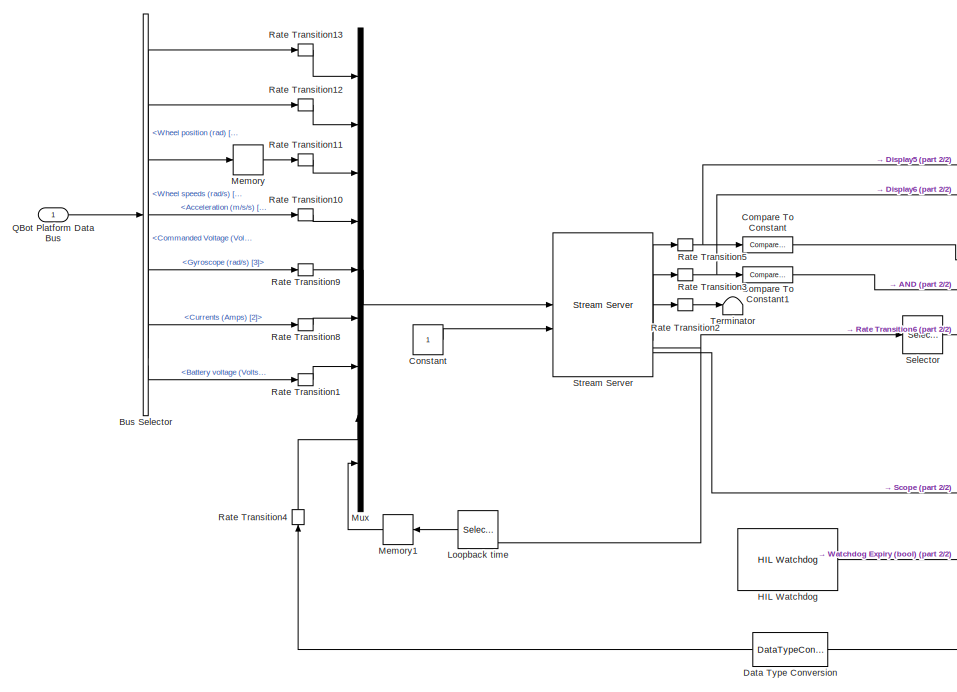
[diagram: User Client Communications - part 1/2, left side, full height]
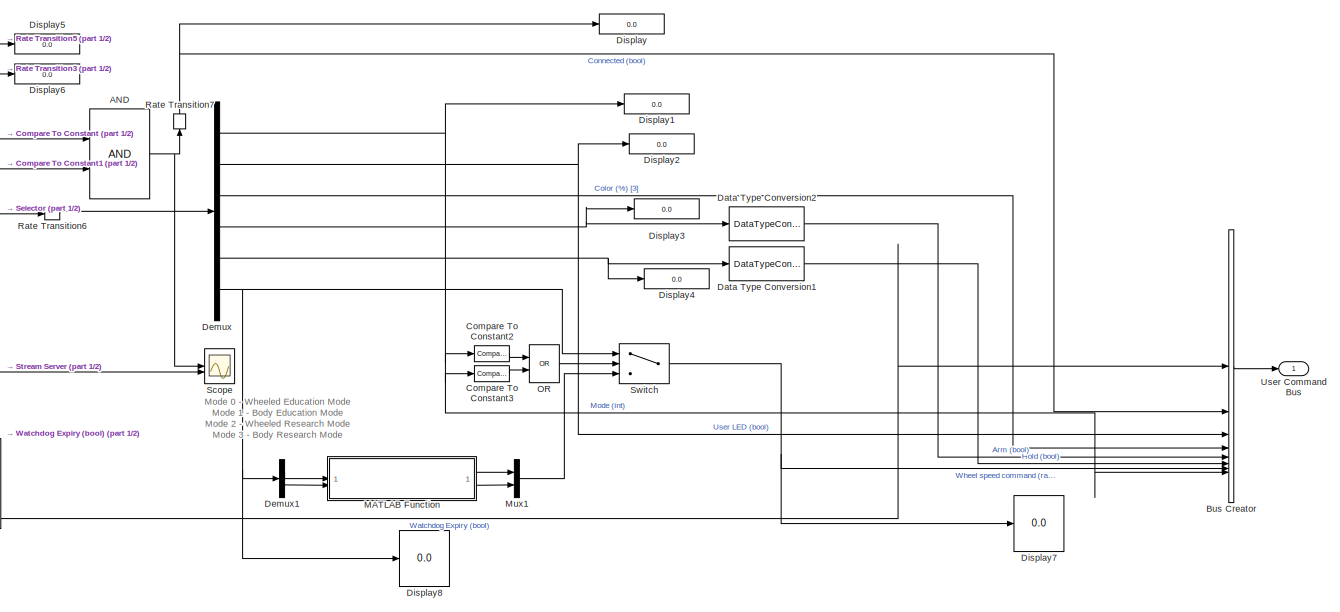
[diagram: User Client Communications - part 2/2, right side, full height]
BLOCK [SubSystem] User Client Communications
BLOCK [Logic] User Client Communications/AND
  AllPortsSameDT = off
  IconShape = distinctive
  OutDataTypeStr = boolean
BLOCK [BusCreator] User Client Communications/Bus Creator
  DisplayOption = bar
  InheritFromInputs = on
  Inputs = 8
BLOCK [BusSelector] User Client Communications/Bus Selector
  OutputSignals = Wheel position (rad) [2],Wheel speeds (rad/s) [2],Commanded Voltage (Volts) [2],Acceleration (m/s/s) [3],Gyroscope (rad/s) [3],Currents (Amps) [2],Battery voltage (Volts)
BLOCK [Reference] User Client Communications/Compare To Constant  REF=simulink/Logic and Bit
Operations/Compare
To Constant
  SourceBlock = simulink/Logic and Bit\nOperations/Compare\nTo Constant
  SourceType = Compare To Constant
BLOCK [Reference] User Client Communications/Compare To Constant1  REF=simulink/Logic and Bit
Operations/Compare
To Constant
  SourceBlock = simulink/Logic and Bit\nOperations/Compare\nTo Constant
  SourceType = Compare To Constant
BLOCK [Reference] User Client Communications/Compare To Constant2  REF=simulink/Logic and Bit
Operations/Compare
To Constant
  SourceBlock = simulink/Logic and Bit\nOperations/Compare\nTo Constant
  SourceType = Compare To Constant
BLOCK [Reference] User Client Communications/Compare To Constant3  REF=simulink/Logic and Bit
Operations/Compare
To Constant
  SourceBlock = simulink/Logic and Bit\nOperations/Compare\nTo Constant
  SourceType = Compare To Constant
BLOCK [Constant] User Client Communications/Constant
BLOCK [DataTypeConversion] User Client Communications/Data Type Conversion
  NameLocation = top
  RndMeth = Floor
  SaturateOnIntegerOverflow = off
BLOCK [DataTypeConversion] User Client Communications/Data Type Conversion1
  RndMeth = Floor
  SaturateOnIntegerOverflow = off
BLOCK [DataTypeConversion] User Client Communications/Data Type Conversion2
  RndMeth = Floor
  SaturateOnIntegerOverflow = off
BLOCK [Demux] User Client Communications/Demux
  Outputs = [1 1 3 1 1 2]
BLOCK [Demux] User Client Communications/Demux1
  NameLocation = left
  Outputs = 2
BLOCK [Display] User Client Communications/Display
  Decimation = 1
BLOCK [Display] User Client Communications/Display1
  Decimation = 1
BLOCK [Display] User Client Communications/Display2
  Decimation = 1
BLOCK [Display] User Client Communications/Display3
  Decimation = 1
BLOCK [Display] User Client Communications/Display4
  Decimation = 1
BLOCK [Display] User Client Communications/Display5
  Decimation = 1
BLOCK [Display] User Client Communications/Display6
  Decimation = 1
BLOCK [Display] User Client Communications/Display7
  Decimation = 1
BLOCK [Display] User Client Communications/Display8
  Decimation = 1
BLOCK [Reference] User Client Communications/HIL Watchdog  REF=quarc_library/Data Acquisition/Generic/Watchdog/HIL Watchdog
  AttributesFormatString = (%<object_name>)
  SourceBlock = quarc_library/Data Acquisition/Generic/Watchdog/HIL Watchdog
  SourceProductName = QUARC Targets
  SourceType = HIL Watchdog
  UserDataPersistent = on
BLOCK [Selector] User Client Communications/Loopback time
  IndexOptions = Index vector (dialog)
  Indices = 10
  InputPortWidth = 10
  NameLocation = top
  OutputSizes = 1
BLOCK [SubSystem] User Client Communications/MATLAB Function
  ErrorFcn = Stateflow.Translate.translate
  LibrarySourceBlock = simulink/User-Defined\nFunctions/MATLAB Function
  PermitHierarchicalResolution = ExplicitOnly
  SFBlockType = MATLAB Function
  TreatAsAtomicUnit = on
BLOCK [Demux] User Client Communications/MATLAB Function/ Demux 
  Outputs = 1
BLOCK [S-Function] User Client Communications/MATLAB Function/ SFunction 
  EnableBusSupport = on
  FunctionName = sf_sfun
  PortCounts = [2 3]
  SFcnIsStateOwnerBlock = off
  SFunctionDeploymentMode = off
  Tag = Stateflow S-Function 7
BLOCK [Terminator] User Client Communications/MATLAB Function/ Terminator 
BLOCK [Inport] User Client Communications/MATLAB Function/Omega
  Port = 2
BLOCK [Inport] User Client Communications/MATLAB Function/vC
BLOCK [Outport] User Client Communications/MATLAB Function/wL
BLOCK [Outport] User Client Communications/MATLAB Function/wR
  Port = 2
BLOCK [Memory] User Client Communications/Memory
BLOCK [Memory] User Client Communications/Memory1
  InheritSampleTime = on
  NameLocation = top
BLOCK [Mux] User Client Communications/Mux
  DisplayOption = bar
  Inputs = 9
BLOCK [Mux] User Client Communications/Mux1
  DisplayOption = bar
  Inputs = 2
BLOCK [Logic] User Client Communications/OR
  AllPortsSameDT = off
  IconShape = distinctive
  Operator = OR
  OutDataTypeStr = boolean
BLOCK [Inport] User Client Communications/QBot Platform Data Bus
BLOCK [RateTransition] User Client Communications/Rate Transition1
BLOCK [RateTransition] User Client Communications/Rate Transition10
BLOCK [RateTransition] User Client Communications/Rate Transition11
BLOCK [RateTransition] User Client Communications/Rate Transition12
BLOCK [RateTransition] User Client Communications/Rate Transition13
BLOCK [RateTransition] User Client Communications/Rate Transition2
BLOCK [RateTransition] User Client Communications/Rate Transition3
BLOCK [RateTransition] User Client Communications/Rate Transition4
  NameLocation = right
BLOCK [RateTransition] User Client Communications/Rate Transition5
BLOCK [RateTransition] User Client Communications/Rate Transition6
BLOCK [RateTransition] User Client Communications/Rate Transition7
  NameLocation = right
BLOCK [RateTransition] User Client Communications/Rate Transition8
BLOCK [RateTransition] User Client Communications/Rate Transition9
BLOCK [Scope] User Client Communications/Scope
  Floating = off
  NumInputPorts = 2
  ScopeSpecificationString = Simulink.scopes.TimeScopeBlockCfg('CurrentConfiguration', extmgr.ConfigurationSet(extmgr.Configuration('Core','General UI',true),extmgr.Configuration('Core','Source UI',true),extmgr.Configuration('Sources','WiredSimulink',true,'DataLoggingVariableName','ScopeData1'),extmgr.Configuration('Visuals','Time Domain',true,'SerializedDisplays',{struct('MinYLimReal','-0.125','MaxYLimReal','1.125','YLabelRe...<+1510ch>
BLOCK [Selector] User Client Communications/Selector
  IndexOptions = Index vector (dialog)
  Indices = 1:9
  InputPortWidth = 10
  OutputSizes = 1
BLOCK [Reference] User Client Communications/Stream Server  REF=quarc_library/Communications/Basic/Stream Server
  AttributesFormatString = "tcpip://localhost:18978?nagle='off'"
  SourceBlock = quarc_library/Communications/Basic/Stream Server
  SourceProductName = QUARC Targets
  SourceType = Stream Server
BLOCK [Switch] User Client Communications/Switch
  Criteria = u2 > Threshold
  InputSameDT = off
  SaturateOnIntegerOverflow = off
BLOCK [Terminator] User Client Communications/Terminator
BLOCK [Outport] User Client Communications/User Command Bus
ANNOTATION (root): QBot Platform Driver Virtual v 2.9
ANNOTATION I//O/battery monitoring: Only trigger a low battery or stop condition if the battery voltage is low and the total current draw is under 2 Amps, as a larger current draw lowers battery voltage as well.
ANNOTATION State Monitoring & Safety: LED States Color State Level Description Yellow Solid Model Motor overcurrent or stall being detected (this is not an error, but indicates strain) Magenta Solid Model Low battery warning (this is not an error, but indicates that you should stop the model soon) White Pulse Model Driver application is healthy and waiting for an incoming client connection Other N/A Model Driver application is applyin...<+518ch>
ANNOTATION State Monitoring & Safety: Warning/Error Messages Item State Delay Description Low Battery Warning 15 seconds The battery is low (between 11.6 and 12.0 Volts) Low Battery Error Immediate The battery is critically low (under 11.6 Volts) Watchdog Error Immediate The watchdog has expired (embedded computer has lost comms with the microcontroller) Stall/Overcurrent Error 2 seconds The motors are straining (check for obstacles a...<+39ch>
ANNOTATION User Client Communications: Mode 0 - Wheeled Education Mode Mode 1 - Body Education Mode Mode 2 - Wheeled Research Mode Mode 3 - Body Research Mode
LINE I//O/Bus Creator1:1 -> I//O/Status Bus:1
LINE I//O/Bus Creator:1 -> I//O/QBot Platform Data Bus:1
NET I//O/Bus Selector1:1 -> I//O/Mux:1, I//O/Mux:2
NET I//O/Bus Selector2:1 -> I//O/Mux3:1, I//O/Mux3:2
NET I//O/Bus Selector:1 -> I//O/Bus Creator:7, I//O/Divide:1
LINE I//O/Bus Selector:2 -> I//O/Mux1:1
LINE I//O/Constant1:1 -> I//O/Mux2:1
LINE I//O/Constant2:1 -> I//O/Mux2:2
LINE I//O/Constant3:1 -> I//O/Mux2:3
LINE I//O/Constant:1 -> I//O/Mux:3
LINE I//O/Demux1:1 -> I//O/Bus Creator1:2
LINE I//O/Demux1:2 -> I//O/battery monitoring:3
LINE I//O/Demux:1 -> I//O/Bus Creator:1
LINE I//O/Demux:2 -> I//O/Bus Creator:2
LINE I//O/Demux:3 -> I//O/count   s//s to rad//s:1
LINE I//O/Divide:1 -> I//O/HIL Write:1
NET I//O/HIL Read Timebase:1 -> I//O/Selector1:1, I//O/Selector2:1
LINE I//O/HIL Read Timebase:2 -> I//O/counts to rad:1
LINE I//O/HIL Read Timebase:3 -> I//O/Demux1:1
LINE I//O/HIL Read Timebase:4 -> I//O/Demux:1
LINE I//O/LED Bus:1 -> I//O/Bus Selector2:1
LINE I//O/Memory:1 -> I//O/Divide:2
NET I//O/Mux1:1 -> I//O/Display1:1, I//O/HIL Write:3
LINE I//O/Mux2:1 -> I//O/HIL Set Property:1
LINE I//O/Mux3:1 -> I//O/Mux1:2
NET I//O/Mux:1 -> I//O/Display2:1, I//O/HIL Write:2
LINE I//O/QBot Command Bus:1 -> I//O/Bus Selector:1
NET I//O/Selector1:1 -> I//O/Bus Creator:5, I//O/Scope1:1, I//O/battery monitoring:1
LINE I//O/Selector2:1 -> I//O/battery monitoring:2
LINE I//O/User Command Bus:1 -> I//O/Bus Selector1:1
LINE I//O/battery monitoring/AND1:1 -> I//O/battery monitoring/Mux:2
LINE I//O/battery monitoring/AND:1 -> I//O/battery monitoring/Mux:1
LINE I//O/battery monitoring/Battery Status:1 -> I//O/battery monitoring/Figure out which battery is valid and active1:2
NET I//O/battery monitoring/Battery Voltage (V) [2]:1 -> I//O/battery monitoring/Figure out which battery is valid and active1:1, I//O/battery monitoring/Figure out which battery is valid and active:1, I//O/battery monitoring/Scope:1, I//O/battery monitoring/Selector1:1
NET I//O/battery monitoring/Compare To Constant:1 -> I//O/battery monitoring/AND1:2, I//O/battery monitoring/AND:2
NET I//O/battery monitoring/Constant1:1 -> I//O/battery monitoring/Figure out which battery is valid and active1:4, I//O/battery monitoring/Figure out which battery is valid and active:3
NET I//O/battery monitoring/Constant2:1 -> I//O/battery monitoring/Figure out which battery is valid and active1:5, I//O/battery monitoring/Figure out which battery is valid and active:4
NET I//O/battery monitoring/Constant:1 -> I//O/battery monitoring/Figure out which battery is valid and active1:3, I//O/battery monitoring/Figure out which battery is valid and active:2
LINE I//O/battery monitoring/Current:1 -> I//O/battery monitoring/Sum:1
LINE I//O/battery monitoring/Figure out which battery is valid and active1:1 -> I//O/battery monitoring/active battery voltage (V):1
LINE I//O/battery monitoring/Figure out which battery is valid and active1:2 -> I//O/battery monitoring/Display:1
LINE I//O/battery monitoring/Figure out which battery is valid and active1:3 -> I//O/battery monitoring/AND:1
LINE I//O/battery monitoring/Figure out which battery is valid and active1:4 -> I//O/battery monitoring/AND1:1
LINE I//O/battery monitoring/Figure out which battery is valid and active:1 -> I//O/battery monitoring/Selector:1
NET I//O/battery monitoring/Figure out which battery is valid and active:2 -> I//O/battery monitoring/Selector1:2, I//O/battery monitoring/Selector:2
LINE I//O/battery monitoring/Mux:1 -> I//O/battery monitoring/low battery (bool):1
LINE I//O/battery monitoring/Selector1:1 -> I//O/battery monitoring/Terminator1:1
LINE I//O/battery monitoring/Selector:1 -> I//O/battery monitoring/Terminator:1
LINE I//O/battery monitoring/Sum:1 -> I//O/battery monitoring/Compare To Constant:1
LINE I//O/battery monitoring:1 -> I//O/Bus Creator1:1
NET I//O/battery monitoring:2 -> I//O/Bus Creator:6, I//O/Memory:1, I//O/Voltage:1
LINE I//O/count   s//s to rad//s:1 -> I//O/Bus Creator:3
LINE I//O/counts to rad:1 -> I//O/Bus Creator:4
LINE I//O:1 -> State Monitoring & Safety:1
NET I//O:2 -> Motor Controllers // Speed Modulation:2, User Client Communications:1
LINE Motor Controllers // Speed Modulation/Bus Creator:1 -> Motor Controllers // Speed Modulation/QBot Command Bus:1
LINE Motor Controllers // Speed Modulation/Bus Selector1:1 -> Motor Controllers // Speed Modulation/Speed Controller:2
LINE Motor Controllers // Speed Modulation/Bus Selector1:2 -> Motor Controllers // Speed Modulation/Speed Controller:3
LINE Motor Controllers // Speed Modulation/Bus Selector1:3 -> Motor Controllers // Speed Modulation/Speed Controller:4
LINE Motor Controllers // Speed Modulation/Bus Selector2:1 -> Motor Controllers // Speed Modulation/Switch:2
NET Motor Controllers // Speed Modulation/Bus Selector2:2 -> Motor Controllers // Speed Modulation/Switch1:2, Motor Controllers // Speed Modulation/Switch2:2
LINE Motor Controllers // Speed Modulation/Bus Selector:1 -> Motor Controllers // Speed Modulation/Speed Controller:1
NET Motor Controllers // Speed Modulation/Constant3:1 -> Motor Controllers // Speed Modulation/Switch1:3, Motor Controllers // Speed Modulation/Switch2:3, Motor Controllers // Speed Modulation/Switch:1
LINE Motor Controllers // Speed Modulation/QBot Platform Data Bus:1 -> Motor Controllers // Speed Modulation/Bus Selector:1
LINE Motor Controllers // Speed Modulation/Speed Controller/Add:1 -> Motor Controllers // Speed Modulation/Speed Controller/Volts (V) [2]:1
NET Motor Controllers // Speed Modulation/Speed Controller/Arm (bool):1 -> Motor Controllers // Speed Modulation/Speed Controller/Data Type Conversion:1, Motor Controllers // Speed Modulation/Speed Controller/Switch3:2
LINE Motor Controllers // Speed Modulation/Speed Controller/Command Rate Limitation & Saturation/Demux:1 -> Motor Controllers // Speed Modulation/Speed Controller/Command Rate Limitation & Saturation/Saturation Dynamic:2
LINE Motor Controllers // Speed Modulation/Speed Controller/Command Rate Limitation & Saturation/Demux:2 -> Motor Controllers // Speed Modulation/Speed Controller/Command Rate Limitation & Saturation/Saturation Dynamic1:2
LINE Motor Controllers // Speed Modulation/Speed Controller/Command Rate Limitation & Saturation/MATLAB Function1:1 -> Motor Controllers // Speed Modulation/Speed Controller/Command Rate Limitation & Saturation/Rate Limiter Dynamic:1
LINE Motor Controllers // Speed Modulation/Speed Controller/Command Rate Limitation & Saturation/MATLAB Function1:2 -> Motor Controllers // Speed Modulation/Speed Controller/Command Rate Limitation & Saturation/Rate Limiter Dynamic:3
LINE Motor Controllers // Speed Modulation/Speed Controller/Command Rate Limitation & Saturation/MATLAB Function1:3 -> Motor Controllers // Speed Modulation/Speed Controller/Command Rate Limitation & Saturation/Saturation Dynamic:1
LINE Motor Controllers // Speed Modulation/Speed Controller/Command Rate Limitation & Saturation/MATLAB Function1:4 -> Motor Controllers // Speed Modulation/Speed Controller/Command Rate Limitation & Saturation/Saturation Dynamic:3
LINE Motor Controllers // Speed Modulation/Speed Controller/Command Rate Limitation & Saturation/MATLAB Function2:1 -> Motor Controllers // Speed Modulation/Speed Controller/Command Rate Limitation & Saturation/Rate Limiter Dynamic1:1
LINE Motor Controllers // Speed Modulation/Speed Controller/Command Rate Limitation & Saturation/MATLAB Function2:2 -> Motor Controllers // Speed Modulation/Speed Controller/Command Rate Limitation & Saturation/Rate Limiter Dynamic1:3
LINE Motor Controllers // Speed Modulation/Speed Controller/Command Rate Limitation & Saturation/MATLAB Function2:3 -> Motor Controllers // Speed Modulation/Speed Controller/Command Rate Limitation & Saturation/Saturation Dynamic1:1
LINE Motor Controllers // Speed Modulation/Speed Controller/Command Rate Limitation & Saturation/MATLAB Function2:4 -> Motor Controllers // Speed Modulation/Speed Controller/Command Rate Limitation & Saturation/Saturation Dynamic1:3
LINE Motor Controllers // Speed Modulation/Speed Controller/Command Rate Limitation & Saturation/Memory1:1 -> Motor Controllers // Speed Modulation/Speed Controller/Command Rate Limitation & Saturation/MATLAB Function1:2
LINE Motor Controllers // Speed Modulation/Speed Controller/Command Rate Limitation & Saturation/Memory2:1 -> Motor Controllers // Speed Modulation/Speed Controller/Command Rate Limitation & Saturation/MATLAB Function2:2
LINE Motor Controllers // Speed Modulation/Speed Controller/Command Rate Limitation & Saturation/Mux:1 -> Motor Controllers // Speed Modulation/Speed Controller/Command Rate Limitation & Saturation/commanded:1
NET Motor Controllers // Speed Modulation/Speed Controller/Command Rate Limitation & Saturation/Rate Limiter Dynamic1:1 -> Motor Controllers // Speed Modulation/Speed Controller/Command Rate Limitation & Saturation/Memory2:1, Motor Controllers // Speed Modulation/Speed Controller/Command Rate Limitation & Saturation/Mux:2
NET Motor Controllers // Speed Modulation/Speed Controller/Command Rate Limitation & Saturation/Rate Limiter Dynamic:1 -> Motor Controllers // Speed Modulation/Speed Controller/Command Rate Limitation & Saturation/Memory1:1, Motor Controllers // Speed Modulation/Speed Controller/Command Rate Limitation & Saturation/Mux:1
LINE Motor Controllers // Speed Modulation/Speed Controller/Command Rate Limitation & Saturation/Saturation Dynamic1:1 -> Motor Controllers // Speed Modulation/Speed Controller/Command Rate Limitation & Saturation/Rate Limiter Dynamic1:2
LINE Motor Controllers // Speed Modulation/Speed Controller/Command Rate Limitation & Saturation/Saturation Dynamic:1 -> Motor Controllers // Speed Modulation/Speed Controller/Command Rate Limitation & Saturation/Rate Limiter Dynamic:2
LINE Motor Controllers // Speed Modulation/Speed Controller/Command Rate Limitation & Saturation/edu_a:1 -> Motor Controllers // Speed Modulation/Speed Controller/Command Rate Limitation & Saturation/MATLAB Function1:4
LINE Motor Controllers // Speed Modulation/Speed Controller/Command Rate Limitation & Saturation/edu_s:1 -> Motor Controllers // Speed Modulation/Speed Controller/Command Rate Limitation & Saturation/MATLAB Function1:3
NET Motor Controllers // Speed Modulation/Speed Controller/Command Rate Limitation & Saturation/mode:1 -> Motor Controllers // Speed Modulation/Speed Controller/Command Rate Limitation & Saturation/MATLAB Function1:1, Motor Controllers // Speed Modulation/Speed Controller/Command Rate Limitation & Saturation/MATLAB Function2:1
LINE Motor Controllers // Speed Modulation/Speed Controller/Command Rate Limitation & Saturation/net voltage:1 -> Motor Controllers // Speed Modulation/Speed Controller/Command Rate Limitation & Saturation/Demux:1
LINE Motor Controllers // Speed Modulation/Speed Controller/Command Rate Limitation & Saturation/rsc_a:1 -> Motor Controllers // Speed Modulation/Speed Controller/Command Rate Limitation & Saturation/MATLAB Function1:6
LINE Motor Controllers // Speed Modulation/Speed Controller/Command Rate Limitation & Saturation/rsc_s:1 -> Motor Controllers // Speed Modulation/Speed Controller/Command Rate Limitation & Saturation/MATLAB Function1:5
NET Motor Controllers // Speed Modulation/Speed Controller/Command Rate Limitation & Saturation:1 -> Motor Controllers // Speed Modulation/Speed Controller/Product2:2, Motor Controllers // Speed Modulation/Speed Controller/Speed Cmd (rad//s) [2]:1, Motor Controllers // Speed Modulation/Speed Controller/Sum:1
LINE Motor Controllers // Speed Modulation/Speed Controller/Constant6:1 -> Motor Controllers // Speed Modulation/Speed Controller/Switch3:3
LINE Motor Controllers // Speed Modulation/Speed Controller/Data Type Conversion:1 -> Motor Controllers // Speed Modulation/Speed Controller/Integrator:2
LINE Motor Controllers // Speed Modulation/Speed Controller/Edu mode max accel:1 -> Motor Controllers // Speed Modulation/Speed Controller/Command Rate Limitation & Saturation:3
LINE Motor Controllers // Speed Modulation/Speed Controller/Edu mode max speed:1 -> Motor Controllers // Speed Modulation/Speed Controller/Command Rate Limitation & Saturation:2
LINE Motor Controllers // Speed Modulation/Speed Controller/Gain:1 -> Motor Controllers // Speed Modulation/Speed Controller/Add:2
LINE Motor Controllers // Speed Modulation/Speed Controller/Integrator:1 -> Motor Controllers // Speed Modulation/Speed Controller/Sum1:3
LINE Motor Controllers // Speed Modulation/Speed Controller/K_FF:1 -> Motor Controllers // Speed Modulation/Speed Controller/Product2:1
LINE Motor Controllers // Speed Modulation/Speed Controller/K_I:1 -> Motor Controllers // Speed Modulation/Speed Controller/Product:1
LINE Motor Controllers // Speed Modulation/Speed Controller/K_P:1 -> Motor Controllers // Speed Modulation/Speed Controller/Product1:1
LINE Motor Controllers // Speed Modulation/Speed Controller/Mode (enum):1 -> Motor Controllers // Speed Modulation/Speed Controller/Command Rate Limitation & Saturation:1
LINE Motor Controllers // Speed Modulation/Speed Controller/Product1:1 -> Motor Controllers // Speed Modulation/Speed Controller/Saturation:1
LINE Motor Controllers // Speed Modulation/Speed Controller/Product2:1 -> Motor Controllers // Speed Modulation/Speed Controller/Saturation2:1
LINE Motor Controllers // Speed Modulation/Speed Controller/Product:1 -> Motor Controllers // Speed Modulation/Speed Controller/Integrator:1
LINE Motor Controllers // Speed Modulation/Speed Controller/Research mode max accel:1 -> Motor Controllers // Speed Modulation/Speed Controller/Command Rate Limitation & Saturation:5
LINE Motor Controllers // Speed Modulation/Speed Controller/Research mode max speed:1 -> Motor Controllers // Speed Modulation/Speed Controller/Command Rate Limitation & Saturation:4
LINE Motor Controllers // Speed Modulation/Speed Controller/Saturation2:1 -> Motor Controllers // Speed Modulation/Speed Controller/Sum1:1
LINE Motor Controllers // Speed Modulation/Speed Controller/Saturation:1 -> Motor Controllers // Speed Modulation/Speed Controller/Sum1:2
LINE Motor Controllers // Speed Modulation/Speed Controller/Sign:1 -> Motor Controllers // Speed Modulation/Speed Controller/Gain:1
NET Motor Controllers // Speed Modulation/Speed Controller/Sum1:1 -> Motor Controllers // Speed Modulation/Speed Controller/Add:1, Motor Controllers // Speed Modulation/Speed Controller/Sign:1
NET Motor Controllers // Speed Modulation/Speed Controller/Sum:1 -> Motor Controllers // Speed Modulation/Speed Controller/Product1:2, Motor Controllers // Speed Modulation/Speed Controller/Product:2
LINE Motor Controllers // Speed Modulation/Speed Controller/Switch3:1 -> Motor Controllers // Speed Modulation/Speed Controller/Command Rate Limitation & Saturation:6
LINE Motor Controllers // Speed Modulation/Speed Controller/command (rad//s):1 -> Motor Controllers // Speed Modulation/Speed Controller/zero out wheel speed commands under minimum speed threshold:1
LINE Motor Controllers // Speed Modulation/Speed Controller/measurement (rad//s):1 -> Motor Controllers // Speed Modulation/Speed Controller/Sum:2
LINE Motor Controllers // Speed Modulation/Speed Controller/zero out wheel speed commands under minimum speed threshold/Demux:1 -> Motor Controllers // Speed Modulation/Speed Controller/zero out wheel speed commands under minimum speed threshold/Subsystem:1
LINE Motor Controllers // Speed Modulation/Speed Controller/zero out wheel speed commands under minimum speed threshold/Demux:2 -> Motor Controllers // Speed Modulation/Speed Controller/zero out wheel speed commands under minimum speed threshold/Subsystem1:1
LINE Motor Controllers // Speed Modulation/Speed Controller/zero out wheel speed commands under minimum speed threshold/Mux:1 -> Motor Controllers // Speed Modulation/Speed Controller/zero out wheel speed commands under minimum speed threshold/cmd out:1
LINE Motor Controllers // Speed Modulation/Speed Controller/zero out wheel speed commands under minimum speed threshold/Subsystem/Abs:1 -> Motor Controllers // Speed Modulation/Speed Controller/zero out wheel speed commands under minimum speed threshold/Subsystem/Compare To Constant:1
LINE Motor Controllers // Speed Modulation/Speed Controller/zero out wheel speed commands under minimum speed threshold/Subsystem/Compare To Constant:1 -> Motor Controllers // Speed Modulation/Speed Controller/zero out wheel speed commands under minimum speed threshold/Subsystem/Switch:2
LINE Motor Controllers // Speed Modulation/Speed Controller/zero out wheel speed commands under minimum speed threshold/Subsystem/Constant:1 -> Motor Controllers // Speed Modulation/Speed Controller/zero out wheel speed commands under minimum speed threshold/Subsystem/Switch:1
NET Motor Controllers // Speed Modulation/Speed Controller/zero out wheel speed commands under minimum speed threshold/Subsystem/In1:1 -> Motor Controllers // Speed Modulation/Speed Controller/zero out wheel speed commands under minimum speed threshold/Subsystem/Abs:1, Motor Controllers // Speed Modulation/Speed Controller/zero out wheel speed commands under minimum speed threshold/Subsystem/Switch:3
LINE Motor Controllers // Speed Modulation/Speed Controller/zero out wheel speed commands under minimum speed threshold/Subsystem/Switch:1 -> Motor Controllers // Speed Modulation/Speed Controller/zero out wheel speed commands under minimum speed threshold/Subsystem/Out1:1
LINE Motor Controllers // Speed Modulation/Speed Controller/zero out wheel speed commands under minimum speed threshold/Subsystem1/Abs:1 -> Motor Controllers // Speed Modulation/Speed Controller/zero out wheel speed commands under minimum speed threshold/Subsystem1/Compare To Constant:1
LINE Motor Controllers // Speed Modulation/Speed Controller/zero out wheel speed commands under minimum speed threshold/Subsystem1/Compare To Constant:1 -> Motor Controllers // Speed Modulation/Speed Controller/zero out wheel speed commands under minimum speed threshold/Subsystem1/Switch:2
LINE Motor Controllers // Speed Modulation/Speed Controller/zero out wheel speed commands under minimum speed threshold/Subsystem1/Constant:1 -> Motor Controllers // Speed Modulation/Speed Controller/zero out wheel speed commands under minimum speed threshold/Subsystem1/Switch:1
NET Motor Controllers // Speed Modulation/Speed Controller/zero out wheel speed commands under minimum speed threshold/Subsystem1/In1:1 -> Motor Controllers // Speed Modulation/Speed Controller/zero out wheel speed commands under minimum speed threshold/Subsystem1/Abs:1, Motor Controllers // Speed Modulation/Speed Controller/zero out wheel speed commands under minimum speed threshold/Subsystem1/Switch:3
LINE Motor Controllers // Speed Modulation/Speed Controller/zero out wheel speed commands under minimum speed threshold/Subsystem1/Switch:1 -> Motor Controllers // Speed Modulation/Speed Controller/zero out wheel speed commands under minimum speed threshold/Subsystem1/Out1:1
LINE Motor Controllers // Speed Modulation/Speed Controller/zero out wheel speed commands under minimum speed threshold/Subsystem1:1 -> Motor Controllers // Speed Modulation/Speed Controller/zero out wheel speed commands under minimum speed threshold/Mux:2
LINE Motor Controllers // Speed Modulation/Speed Controller/zero out wheel speed commands under minimum speed threshold/Subsystem:1 -> Motor Controllers // Speed Modulation/Speed Controller/zero out wheel speed commands under minimum speed threshold/Mux:1
LINE Motor Controllers // Speed Modulation/Speed Controller/zero out wheel speed commands under minimum speed threshold/cmd in:1 -> Motor Controllers // Speed Modulation/Speed Controller/zero out wheel speed commands under minimum speed threshold/Demux:1
LINE Motor Controllers // Speed Modulation/Speed Controller/zero out wheel speed commands under minimum speed threshold:1 -> Motor Controllers // Speed Modulation/Speed Controller/Switch3:1
LINE Motor Controllers // Speed Modulation/Speed Controller:1 -> Motor Controllers // Speed Modulation/Switch:3
LINE Motor Controllers // Speed Modulation/Speed Controller:2 -> Motor Controllers // Speed Modulation/Switch1:1
LINE Motor Controllers // Speed Modulation/Switch1:1 -> Motor Controllers // Speed Modulation/Bus Creator:2
LINE Motor Controllers // Speed Modulation/Switch2:1 -> Motor Controllers // Speed Modulation/Bus Creator:1
LINE Motor Controllers // Speed Modulation/Switch:1 -> Motor Controllers // Speed Modulation/Switch2:1
NET Motor Controllers // Speed Modulation/User Command Bus:1 -> Motor Controllers // Speed Modulation/Bus Selector1:1, Motor Controllers // Speed Modulation/Bus Selector2:1
LINE Motor Controllers // Speed Modulation:1 -> I//O:3
LINE State Monitoring & Safety/Bus Creator:1 -> State Monitoring & Safety/LED Bus:1
LINE State Monitoring & Safety/Bus Selector1:1 -> State Monitoring & Safety/Selector4:1
NET State Monitoring & Safety/Bus Selector2:1 -> State Monitoring & Safety/Selector1:1, State Monitoring & Safety/Selector:1
NET State Monitoring & Safety/Bus Selector2:2 -> State Monitoring & Safety/Demux2:1, State Monitoring & Safety/Selector2:1, State Monitoring & Safety/Selector3:1
LINE State Monitoring & Safety/Bus Selector3:1 -> State Monitoring & Safety/Memory1:1
LINE State Monitoring & Safety/Bus Selector:1 -> State Monitoring & Safety/LEDs:1
NET State Monitoring & Safety/Bus Selector:2 -> State Monitoring & Safety/Display2:1, State Monitoring & Safety/Switch4:2
NET State Monitoring & Safety/Bus Selector:3 -> State Monitoring & Safety/Display4:1, State Monitoring & Safety/Switch2:2
NET State Monitoring & Safety/Bus Selector:4 -> State Monitoring & Safety/Display3:1, State Monitoring & Safety/Switch1:2
NET State Monitoring & Safety/Bus Selector:5 -> State Monitoring & Safety/Display1:1, State Monitoring & Safety/Switch:2
LINE State Monitoring & Safety/Color Constant1:1 -> State Monitoring & Safety/Switch1:3
NET State Monitoring & Safety/Color Constant2:1 -> State Monitoring & Safety/Product:1, State Monitoring & Safety/Switch2:3
LINE State Monitoring & Safety/Color Constant3:1 -> State Monitoring & Safety/Switch5:3
LINE State Monitoring & Safety/Color Constant4:1 -> State Monitoring & Safety/Switch3:3
LINE State Monitoring & Safety/Color Constant:1 -> State Monitoring & Safety/Product1:1
LINE State Monitoring & Safety/Data Type Conversion1:1 -> State Monitoring & Safety/Low Battery Error:trigger
LINE State Monitoring & Safety/Data Type Conversion2:1 -> State Monitoring & Safety/Low Battery Warning:trigger
LINE State Monitoring & Safety/Data Type Conversion3:1 -> State Monitoring & Safety/Watchdog expiry Error:trigger
LINE State Monitoring & Safety/Data Type Conversion:1 -> State Monitoring & Safety/Stall//Overcurrent Error:trigger
LINE State Monitoring & Safety/Demux2:1 -> State Monitoring & Safety/Scope:1
LINE State Monitoring & Safety/Demux2:2 -> State Monitoring & Safety/Scope:2
LINE State Monitoring & Safety/Demux2:3 -> State Monitoring & Safety/Scope:3
LINE State Monitoring & Safety/Demux2:4 -> State Monitoring & Safety/Scope:4
LINE State Monitoring & Safety/LEDs/Color (%) [3]:1 -> State Monitoring & Safety/LEDs/Demux:1
NET State Monitoring & Safety/LEDs/Constant1:1 -> State Monitoring & Safety/LEDs/MATLAB Function1:3, State Monitoring & Safety/LEDs/MATLAB Function2:3, State Monitoring & Safety/LEDs/MATLAB Function3:3
LINE State Monitoring & Safety/LEDs/Demux:1 -> State Monitoring & Safety/LEDs/MATLAB Function1:2
LINE State Monitoring & Safety/LEDs/Demux:2 -> State Monitoring & Safety/LEDs/MATLAB Function2:2
LINE State Monitoring & Safety/LEDs/Demux:3 -> State Monitoring & Safety/LEDs/MATLAB Function3:2
LINE State Monitoring & Safety/LEDs/MATLAB Function1:1 -> State Monitoring & Safety/LEDs/Mux1:1
LINE State Monitoring & Safety/LEDs/MATLAB Function2:1 -> State Monitoring & Safety/LEDs/Mux1:2
LINE State Monitoring & Safety/LEDs/MATLAB Function3:1 -> State Monitoring & Safety/LEDs/Mux1:3
LINE State Monitoring & Safety/LEDs/Mux1:1 -> State Monitoring & Safety/LEDs/Color (bool) [3]:1
NET State Monitoring & Safety/LEDs/Time:1 -> State Monitoring & Safety/LEDs/MATLAB Function1:1, State Monitoring & Safety/LEDs/MATLAB Function2:1, State Monitoring & Safety/LEDs/MATLAB Function3:1
LINE State Monitoring & Safety/LEDs:1 -> State Monitoring & Safety/Switch4:1
LINE State Monitoring & Safety/Low Battery Error/Print1:1 -> State Monitoring & Safety/Low Battery Error/Terminator:1
LINE State Monitoring & Safety/Low Battery Error/Print1:2 -> State Monitoring & Safety/Low Battery Error/Terminator1:1
LINE State Monitoring & Safety/Low Battery Error/Trigger:1 -> State Monitoring & Safety/Low Battery Error/Stop with Message3:1
LINE State Monitoring & Safety/Low Battery Warning/Print1:1 -> State Monitoring & Safety/Low Battery Warning/Terminator:1
LINE State Monitoring & Safety/Low Battery Warning/Print1:2 -> State Monitoring & Safety/Low Battery Warning/Terminator1:1
LINE State Monitoring & Safety/Low Battery Warning/Trigger:1 -> State Monitoring & Safety/Low Battery Warning/Stop with Message1:1
LINE State Monitoring & Safety/Memory1:1 -> State Monitoring & Safety/Data Type Conversion3:1
LINE State Monitoring & Safety/NOT1:1 -> State Monitoring & Safety/Switch5:2
NET State Monitoring & Safety/NOT:1 -> State Monitoring & Safety/Display:1, State Monitoring & Safety/Switch3:2
NET State Monitoring & Safety/OR1:1 -> State Monitoring & Safety/Threshold2:1, State Monitoring & Safety/Threshold3:1
LINE State Monitoring & Safety/OR2:1 -> State Monitoring & Safety/Data Type Conversion:1
LINE State Monitoring & Safety/OR3:1 -> State Monitoring & Safety/OR2:1
LINE State Monitoring & Safety/Product1:1 -> State Monitoring & Safety/Switch:3
LINE State Monitoring & Safety/Product:1 -> State Monitoring & Safety/Switch2:1
LINE State Monitoring & Safety/Pulse Generator1:1 -> State Monitoring & Safety/Product1:2
LINE State Monitoring & Safety/Pulse Generator:1 -> State Monitoring & Safety/Product:2
LINE State Monitoring & Safety/Selector1:1 -> State Monitoring & Safety/Data Type Conversion1:1
LINE State Monitoring & Safety/Selector2:1 -> State Monitoring & Safety/OR3:1
LINE State Monitoring & Safety/Selector3:1 -> State Monitoring & Safety/OR1:1
LINE State Monitoring & Safety/Selector4:1 -> State Monitoring & Safety/NOT1:1
LINE State Monitoring & Safety/Selector:1 -> State Monitoring & Safety/Threshold:1
LINE State Monitoring & Safety/Stall//Overcurrent Error/Print1:1 -> State Monitoring & Safety/Stall//Overcurrent Error/Terminator:1
LINE State Monitoring & Safety/Stall//Overcurrent Error/Print1:2 -> State Monitoring & Safety/Stall//Overcurrent Error/Terminator1:1
LINE State Monitoring & Safety/Stall//Overcurrent Error/Trigger:1 -> State Monitoring & Safety/Stall//Overcurrent Error/Stop with Message3:1
LINE State Monitoring & Safety/Status Bus :1 -> State Monitoring & Safety/Bus Selector2:1
LINE State Monitoring & Safety/Status Bus:1 -> State Monitoring & Safety/Bus Selector1:1
LINE State Monitoring & Safety/Switch1:1 -> State Monitoring & Safety/Switch4:3
LINE State Monitoring & Safety/Switch2:1 -> State Monitoring & Safety/Switch1:1
LINE State Monitoring & Safety/Switch3:1 -> State Monitoring & Safety/Bus Creator:1
LINE State Monitoring & Safety/Switch4:1 -> State Monitoring & Safety/Switch:1
LINE State Monitoring & Safety/Switch5:1 -> State Monitoring & Safety/Switch3:1
LINE State Monitoring & Safety/Switch:1 -> State Monitoring & Safety/Switch5:1
LINE State Monitoring & Safety/Threshold2:1 -> State Monitoring & Safety/NOT:1
LINE State Monitoring & Safety/Threshold2:2 -> State Monitoring & Safety/Terminator2:1
LINE State Monitoring & Safety/Threshold3:1 -> State Monitoring & Safety/OR2:2
LINE State Monitoring & Safety/Threshold3:2 -> State Monitoring & Safety/Terminator1:1
LINE State Monitoring & Safety/Threshold:1 -> State Monitoring & Safety/Data Type Conversion2:1
LINE State Monitoring & Safety/Threshold:2 -> State Monitoring & Safety/Terminator:1
LINE State Monitoring & Safety/User Command Bus :1 -> State Monitoring & Safety/Bus Selector3:1
LINE State Monitoring & Safety/User Command Bus:1 -> State Monitoring & Safety/Bus Selector:1
LINE State Monitoring & Safety/Watchdog expiry Error/Print1:1 -> State Monitoring & Safety/Watchdog expiry Error/Terminator:1
LINE State Monitoring & Safety/Watchdog expiry Error/Print1:2 -> State Monitoring & Safety/Watchdog expiry Error/Terminator1:1
LINE State Monitoring & Safety/Watchdog expiry Error/Trigger:1 -> State Monitoring & Safety/Watchdog expiry Error/Stop with Message1:1
LINE State Monitoring & Safety:1 -> I//O:1
NET User Client Communications/AND:1 -> User Client Communications/Rate Transition7:1, User Client Communications/Scope:1
LINE User Client Communications/Bus Creator:1 -> User Client Communications/User Command Bus:1
LINE User Client Communications/Bus Selector:1 -> User Client Communications/Rate Transition13:1
LINE User Client Communications/Bus Selector:2 -> User Client Communications/Rate Transition12:1
LINE User Client Communications/Bus Selector:3 -> User Client Communications/Memory:1
LINE User Client Communications/Bus Selector:4 -> User Client Communications/Rate Transition10:1
LINE User Client Communications/Bus Selector:5 -> User Client Communications/Rate Transition9:1
LINE User Client Communications/Bus Selector:6 -> User Client Communications/Rate Transition8:1
LINE User Client Communications/Bus Selector:7 -> User Client Communications/Rate Transition1:1
LINE User Client Communications/Compare To Constant1:1 -> User Client Communications/AND:2
LINE User Client Communications/Compare To Constant2:1 -> User Client Communications/OR:1
LINE User Client Communications/Compare To Constant3:1 -> User Client Communications/OR:2
LINE User Client Communications/Compare To Constant:1 -> User Client Communications/AND:1
LINE User Client Communications/Constant:1 -> User Client Communications/Stream Server:2
LINE User Client Communications/Data Type Conversion1:1 -> User Client Communications/Bus Creator:6
LINE User Client Communications/Data Type Conversion2:1 -> User Client Communications/Bus Creator:5
LINE User Client Communications/Data Type Conversion:1 -> User Client Communications/Rate Transition4:1
LINE User Client Communications/Demux1:1 -> User Client Communications/MATLAB Function:1
LINE User Client Communications/Demux1:2 -> User Client Communications/MATLAB Function:2
NET User Client Communications/Demux:1 -> User Client Communications/Bus Creator:8, User Client Communications/Compare To Constant2:1, User Client Communications/Compare To Constant3:1, User Client Communications/Display1:1
NET User Client Communications/Demux:2 -> User Client Communications/Bus Creator:3, User Client Communications/Display2:1
LINE User Client Communications/Demux:3 -> User Client Communications/Bus Creator:4
NET User Client Communications/Demux:4 -> User Client Communications/Data Type Conversion2:1, User Client Communications/Display3:1
NET User Client Communications/Demux:5 -> User Client Communications/Data Type Conversion1:1, User Client Communications/Display4:1
NET User Client Communications/Demux:6 -> User Client Communications/Demux1:1, User Client Communications/Display8:1, User Client Communications/Switch:1
NET User Client Communications/HIL Watchdog:1 -> User Client Communications/Bus Creator:1, User Client Communications/Data Type Conversion:1
LINE User Client Communications/Loopback time:1 -> User Client Communications/Memory1:1
LINE User Client Communications/MATLAB Function:1 -> User Client Communications/Mux1:1
LINE User Client Communications/MATLAB Function:2 -> User Client Communications/Mux1:2
LINE User Client Communications/Memory1:1 -> User Client Communications/Mux:9
LINE User Client Communications/Memory:1 -> User Client Communications/Rate Transition11:1
LINE User Client Communications/Mux1:1 -> User Client Communications/Switch:3
LINE User Client Communications/Mux:1 -> User Client Communications/Stream Server:1
LINE User Client Communications/OR:1 -> User Client Communications/Switch:2
LINE User Client Communications/QBot Platform Data Bus:1 -> User Client Communications/Bus Selector:1
LINE User Client Communications/Rate Transition10:1 -> User Client Communications/Mux:4
LINE User Client Communications/Rate Transition11:1 -> User Client Communications/Mux:3
LINE User Client Communications/Rate Transition12:1 -> User Client Communications/Mux:2
LINE User Client Communications/Rate Transition13:1 -> User Client Communications/Mux:1
LINE User Client Communications/Rate Transition1:1 -> User Client Communications/Mux:7
LINE User Client Communications/Rate Transition2:1 -> User Client Communications/Terminator:1
NET User Client Communications/Rate Transition3:1 -> User Client Communications/Compare To Constant1:1, User Client Communications/Display6:1
LINE User Client Communications/Rate Transition4:1 -> User Client Communications/Mux:8
NET User Client Communications/Rate Transition5:1 -> User Client Communications/Compare To Constant:1, User Client Communications/Display5:1
LINE User Client Communications/Rate Transition6:1 -> User Client Communications/Demux:1
NET User Client Communications/Rate Transition7:1 -> User Client Communications/Bus Creator:2, User Client Communications/Display:1
LINE User Client Communications/Rate Transition8:1 -> User Client Communications/Mux:6
LINE User Client Communications/Rate Transition9:1 -> User Client Communications/Mux:5
LINE User Client Communications/Selector:1 -> User Client Communications/Rate Transition6:1
LINE User Client Communications/Stream Server:1 -> User Client Communications/Rate Transition5:1
LINE User Client Communications/Stream Server:2 -> User Client Communications/Rate Transition3:1
LINE User Client Communications/Stream Server:3 -> User Client Communications/Rate Transition2:1
NET User Client Communications/Stream Server:4 -> User Client Communications/Loopback time:1, User Client Communications/Selector:1
LINE User Client Communications/Stream Server:5 -> User Client Communications/Scope:2
NET User Client Communications/Switch:1 -> User Client Communications/Bus Creator:7, User Client Communications/Display7:1
NET User Client Communications:1 -> I//O:2, Motor Controllers // Speed Modulation:1, State Monitoring & Safety:2
note: NET lines group one-source signal fan-out (src -> all destinations, sorted); 1:1 wires keep LINE
CHART State Monitoring & Safety/LEDs/MATLAB Function1 states=1 transitions=1
  STATE_LABEL 'eML_blk_kernel()'
  STATE_LABEL 'SCRIPT:\nfunction y = fcn(t, d, p)\n\nt = mod(t, p);\n\nif t/p < d\n    y = 1;\nelse\n    y = 0;\nend'
CHART Motor Controllers // Speed Modulation/Speed Controller/Command Rate Limitation 
& Saturation/MATLAB Function1 states=1 transitions=1
  STATE_LABEL 'eML_blk_kernel()'
  STATE_LABEL 'SCRIPT:\nfunction [upperRate, lowerRate, upperSat, lowerSat] = fcn(mode, command, edu_s, edu_a, rsc_s, rsc_a)\n% this function sets upper/lower saturation/rate limits for wheel speeds\n\n% set acceleration and speed limits based on mode\nif mode == 0 || mode == 1\n    % education mode (0 and 1)\n    accel_limit = edu_a; % rad/s/s\n    speed_limit = edu_s; % rad/s\nelse\n    % research mode (2 and 3)\n    acc...<+518ch>'
CHART State Monitoring & Safety/LEDs/MATLAB Function2 states=1 transitions=1
  STATE_LABEL 'eML_blk_kernel()'
  STATE_LABEL 'SCRIPT:\nfunction y = fcn(t, d, p)\n\nt = mod(t, p);\n\nif t/p < d\n    y = 1;\nelse\n    y = 0;\nend'
CHART I//O/battery monitoring/Figure out which battery
is valid and active1 states=1 transitions=1
  STATE_LABEL 'eML_blk_kernel()'
  STATE_LABEL 'SCRIPT:\nfunction [bat_voltage, bat_voltage_percentage, low_battery, stop] = fcn(bat, battery_status, min_bat_threshold, max_bat_threshold, low_bat_threshold)\n\nstop = 0;\nlow_battery = 0;\nbat_voltage = 13.5;\n\nif battery_status(1) && battery_status(2)\n    bat_voltage = (bat(1) + bat(2)) / 2;\nelseif battery_status(1)\n    bat_voltage = bat(1);\nelseif battery_status(2)\n    bat_voltage = bat(2);\nend\n\nif ...<+171ch>'
CHART State Monitoring & Safety/LEDs/MATLAB Function3 states=1 transitions=1
  STATE_LABEL 'eML_blk_kernel()'
  STATE_LABEL 'SCRIPT:\nfunction y = fcn(t, d, p)\n\nt = mod(t, p);\n\nif t/p < d\n    y = 1;\nelse\n    y = 0;\nend'
CHART User Client Communications/MATLAB Function states=1 transitions=1
  STATE_LABEL 'eML_blk_kernel()'
  STATE_LABEL 'SCRIPT:\nfunction [wL, wR] = invKin(vC , Omega)\n\n% wheelbase\nd=0.3928; \n\n% calculate wheel linear velocities\nvR = vC + Omega*d/2;\nvL = vC - Omega*d/2;\n\n% calculate wheel angular velocities\nwheelRadius = 3.5*0.0254/2;\n\nwR = vR/ wheelRadius;\nwL = vL/ wheelRadius;\n'
CHART Motor Controllers // Speed Modulation/Speed Controller/Command Rate Limitation 
& Saturation/MATLAB Function2 states=1 transitions=1
  STATE_LABEL 'eML_blk_kernel()'
  STATE_LABEL 'SCRIPT:\nfunction [upperRate, lowerRate, upperSat, lowerSat] = fcn(mode, command)\n% this function sets upper/lower saturation/rate limits for wheel speeds\n\n% set acceleration and speed limits based on mode\nif mode == 0 || mode == 1\n    % education mode (0 and 1)\n    accel_limit = 11.25; % rad/s/s\n    speed_limit = 15.75; % rad/s\nelse\n    % research mode (2 and 3)\n    accel_limit = 22.50; % rad/s/s\n...<+490ch>'
CHART I//O/battery monitoring/Figure out which battery
is valid and active states=1 transitions=1
  STATE_LABEL 'eML_blk_kernel()'
  STATE_LABEL 'SCRIPT:\nfunction [low_battery, active] = fcn(bat, min_bat_threshold, max_bat_threshold, low_bat_threshold)\nlow_battery = [0, 0];\nvalid = [bat(1) > min_bat_threshold && bat(1) < max_bat_threshold , bat(2) > min_bat_threshold && bat(2) < max_bat_threshold];\n\nif valid(1) && valid(2)\n    if bat(1) < bat(2)\n        active = 1;\n    else\n        active = 2;\n    end\nelseif valid(1)\n    active = 1;\nelseif ...<+192ch>'
CHART  states=0 transitions=0
CHART  states=0 transitions=0
CHART  states=0 transitions=0
CHART  states=0 transitions=0
CHART  states=0 transitions=0
CHART  states=0 transitions=0
CHART  states=0 transitions=0
CHART  states=0 transitions=0
